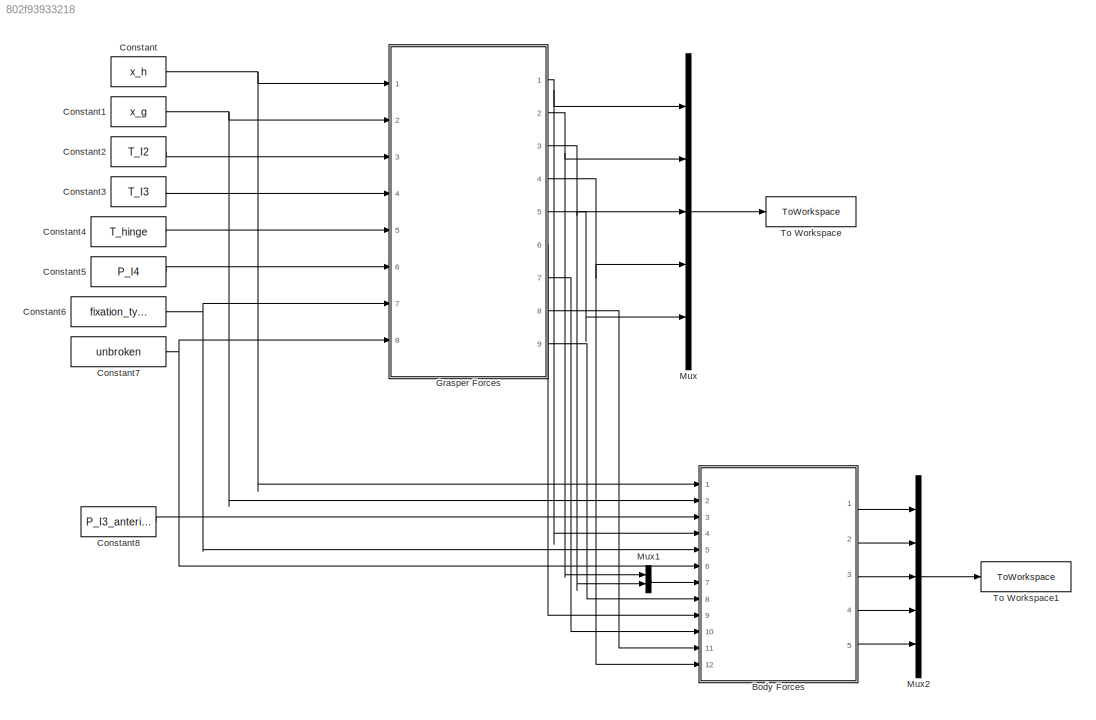
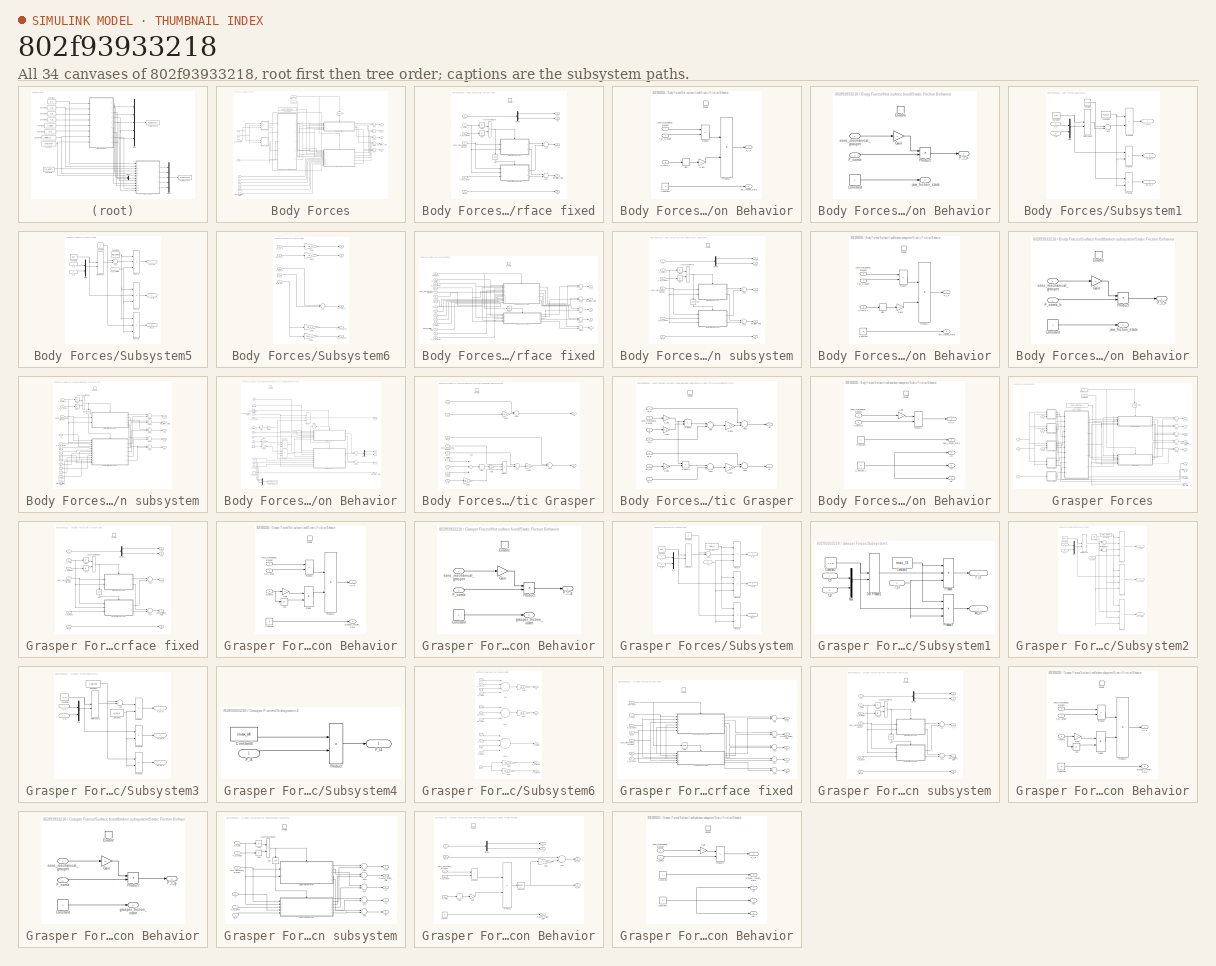
[diagram: thumbnail index - all 34 canvases of the model, root first then tree order]
MODEL slx_802f93933218
KIND model
CONFIG AbsTol = auto
CONFIG EnableMultiTasking = off
CONFIG FixedStep = 1.0
CONFIG MaxStep = auto
CONFIG MinStep = auto
CONFIG RelTol = 1e-3
CONFIG SampleTimeConstraint = Unconstrained
CONFIG Solver = FixedStepAuto
CONFIG SolverName = FixedStepAuto
CONFIG StartTime = 0.0
CONFIG StopTime = 1.0
BLOCK [SubSystem] Body Forces
  Ports = [12, 5]
  RequestExecContextInheritance = off
BLOCK [Outport] Body Forces/A11
  IconDisplay = Port number
  Port = 2
BLOCK [Outport] Body Forces/A12
  IconDisplay = Port number
  Port = 3
BLOCK [Inport] Body Forces/A2
  IconDisplay = Port number
  Port = 7
BLOCK [Sum] Body Forces/Add
  InputSameDT = off
  OutDataTypeStr = Inherit: Inherit via internal rule
  Ports = [2, 1]
  SaturateOnIntegerOverflow = off
BLOCK [Sum] Body Forces/Add1
  InputSameDT = off
  OutDataTypeStr = Inherit: Inherit via internal rule
  Ports = [2, 1]
  SaturateOnIntegerOverflow = off
BLOCK [Sum] Body Forces/Add2
  InputSameDT = off
  OutDataTypeStr = Inherit: Inherit via internal rule
  Ports = [2, 1]
  SaturateOnIntegerOverflow = off
BLOCK [Sum] Body Forces/Add3
  InputSameDT = off
  OutDataTypeStr = Inherit: Inherit via internal rule
  Ports = [2, 1]
  SaturateOnIntegerOverflow = off
BLOCK [Sum] Body Forces/Add4
  InputSameDT = off
  OutDataTypeStr = Inherit: Inherit via internal rule
  Ports = [2, 1]
  SaturateOnIntegerOverflow = off
BLOCK [Outport] Body Forces/B1
  IconDisplay = Port number
  Port = 5
BLOCK [Inport] Body Forces/B2
  IconDisplay = Port number
  Port = 8
BLOCK [Constant] Body Forces/Constant1
  Value = sens_mechanical_grasper
BLOCK [Inport] Body Forces/F_I3
  IconDisplay = Port number
  Port = 9
BLOCK [Inport] Body Forces/F_I4
  IconDisplay = Port number
  Port = 10
BLOCK [Inport] Body Forces/F_f_g
  IconDisplay = Port number
  Port = 4
BLOCK [Outport] Body Forces/F_f_h
  IconDisplay = Port number
BLOCK [Inport] Body Forces/F_hinge
  IconDisplay = Port number
  Port = 11
BLOCK [Logic] Body Forces/NOT
  AllPortsSameDT = off
  IconShape = distinctive
  Operator = NOT
  OutDataTypeStr = boolean
  Ports = [1, 1]
BLOCK [SubSystem] Body Forces/Not surface fixed
  Ports = [6, 5, 1]
  RequestExecContextInheritance = off
BLOCK [Inport] Body Forces/Not surface fixed/A1
  IconDisplay = Port number
  Port = 5
BLOCK [Outport] Body Forces/Not surface fixed/A11
  IconDisplay = Port number
  Port = 2
BLOCK [Outport] Body Forces/Not surface fixed/A12
  IconDisplay = Port number
  Port = 3
BLOCK [Abs] Body Forces/Not surface fixed/Abs
  SaturateOnIntegerOverflow = off
BLOCK [Abs] Body Forces/Not surface fixed/Abs1
  SaturateOnIntegerOverflow = off
BLOCK [Sum] Body Forces/Not surface fixed/Add
  InputSameDT = off
  OutDataTypeStr = Inherit: Inherit via internal rule
  Ports = [2, 1]
  SaturateOnIntegerOverflow = off
BLOCK [Sum] Body Forces/Not surface fixed/Add1
  InputSameDT = off
  OutDataTypeStr = Inherit: Inherit via internal rule
  Ports = [2, 1]
  SaturateOnIntegerOverflow = off
BLOCK [Outport] Body Forces/Not surface fixed/B1
  IconDisplay = Port number
  Port = 5
BLOCK [Inport] Body Forces/Not surface fixed/B1_in
  IconDisplay = Port number
  Port = 6
BLOCK [Demux] Body Forces/Not surface fixed/Demux
  DisplayOption = bar
  Outputs = 2
  Ports = [1, 2]
BLOCK [EnablePort] Body Forces/Not surface fixed/Enable
  Ports = []
BLOCK [Inport] Body Forces/Not surface fixed/F_comb_h
  IconDisplay = Port number
BLOCK [Outport] Body Forces/Not surface fixed/F_f_h
  IconDisplay = Port number
BLOCK [Inport] Body Forces/Not surface fixed/F_kf_h_range
  IconDisplay = Port number
  Port = 3
BLOCK [Inport] Body Forces/Not surface fixed/F_sf_h_range
  IconDisplay = Port number
  Port = 2
BLOCK [SubSystem] Body Forces/Not surface fixed/Kinetic Friction Behavior
  Ports = [3, 2, 1]
  RequestExecContextInheritance = off
BLOCK [Constant] Body Forces/Not surface fixed/Kinetic Friction Behavior/Constant
  Value = 0
BLOCK [EnablePort] Body Forces/Not surface fixed/Kinetic Friction Behavior/Enable
  Ports = []
BLOCK [Inport] Body Forces/Not surface fixed/Kinetic Friction Behavior/F_comb_h
  IconDisplay = Port number
  Port = 2
BLOCK [Outport] Body Forces/Not surface fixed/Kinetic Friction Behavior/F_f_h
  IconDisplay = Port number
BLOCK [Inport] Body Forces/Not surface fixed/Kinetic Friction Behavior/F_kf_h_range
  IconDisplay = Port number
  Port = 3
BLOCK [Gain] Body Forces/Not surface fixed/Kinetic Friction Behavior/Gain1
  Gain = -1
  OutDataTypeStr = Inherit: Inherit via internal rule
  ParamDataTypeStr = Inherit: Inherit via internal rule
  SaturateOnIntegerOverflow = off
BLOCK [Product] Body Forces/Not surface fixed/Kinetic Friction Behavior/Product
  InputSameDT = off
  OutDataTypeStr = Inherit: Inherit via internal rule
  Ports = [2, 1]
  RndMeth = Floor
  SaturateOnIntegerOverflow = off
BLOCK [Product] Body Forces/Not surface fixed/Kinetic Friction Behavior/Product1
  InputSameDT = off
  OutDataTypeStr = Inherit: Inherit via internal rule
  Ports = [2, 1]
  RndMeth = Floor
  SaturateOnIntegerOverflow = off
BLOCK [Signum] Body Forces/Not surface fixed/Kinetic Friction Behavior/Sign
BLOCK [Outport] Body Forces/Not surface fixed/Kinetic Friction Behavior/jaw_friction_state
  IconDisplay = Port number
  Port = 2
BLOCK [Inport] Body Forces/Not surface fixed/Kinetic Friction Behavior/sens_mechanical_grasper
  IconDisplay = Port number
BLOCK [RelationalOperator] Body Forces/Not surface fixed/LessThanOrEqual
  InputSameDT = off
  Operator = <=
  OutDataTypeStr = boolean
  Ports = [2, 1]
  RndMeth = Simplest
BLOCK [Logic] Body Forces/Not surface fixed/NOT
  AllPortsSameDT = off
  IconShape = distinctive
  Operator = NOT
  OutDataTypeStr = boolean
  Ports = [1, 1]
BLOCK [SubSystem] Body Forces/Not surface fixed/Static Friction Behavior
  Ports = [2, 2, 1]
  RequestExecContextInheritance = off
BLOCK [Constant] Body Forces/Not surface fixed/Static Friction Behavior/Constant
BLOCK [EnablePort] Body Forces/Not surface fixed/Static Friction Behavior/Enable
  Ports = []
BLOCK [Inport] Body Forces/Not surface fixed/Static Friction Behavior/F_comb
  IconDisplay = Port number
  Port = 2
BLOCK [Outport] Body Forces/Not surface fixed/Static Friction Behavior/F_f_h
  IconDisplay = Port number
BLOCK [Gain] Body Forces/Not surface fixed/Static Friction Behavior/Gain
  Gain = -1
  OutDataTypeStr = Inherit: Inherit via internal rule
  ParamDataTypeStr = Inherit: Inherit via internal rule
  SaturateOnIntegerOverflow = off
BLOCK [Product] Body Forces/Not surface fixed/Static Friction Behavior/Product
  InputSameDT = off
  OutDataTypeStr = Inherit: Inherit via internal rule
  Ports = [2, 1]
  RndMeth = Floor
  SaturateOnIntegerOverflow = off
BLOCK [Outport] Body Forces/Not surface fixed/Static Friction Behavior/jaw_friction_state
  IconDisplay = Port number
  Port = 2
BLOCK [Inport] Body Forces/Not surface fixed/Static Friction Behavior/sens_mechanical_grasper
  IconDisplay = Port number
BLOCK [Outport] Body Forces/Not surface fixed/jaw_friction_state
  IconDisplay = Port number
  Port = 4
BLOCK [Inport] Body Forces/Not surface fixed/sens_mechanical_grasper
  IconDisplay = Port number
  Port = 4
BLOCK [Inport] Body Forces/P_I3_anterior
  IconDisplay = Port number
  Port = 3
BLOCK [SubSystem] Body Forces/Subsystem1
  Ports = [2, 3]
  RequestExecContextInheritance = off
BLOCK [Outport] Body Forces/Subsystem1/A1_sp_h
  IconDisplay = Port number
  Port = 2
BLOCK [Sum] Body Forces/Subsystem1/Add2
  InputSameDT = off
  OutDataTypeStr = Inherit: Inherit via internal rule
  Ports = [2, 1]
  SaturateOnIntegerOverflow = off
BLOCK [Outport] Body Forces/Subsystem1/B1_sp_h
  IconDisplay = Port number
  Port = 3
BLOCK [Constant] Body Forces/Subsystem1/Constant1
  Value = x_h_ref
BLOCK [Constant] Body Forces/Subsystem1/Constant2
  Value = [-1 0]
BLOCK [Constant] Body Forces/Subsystem1/Constant3
  Value = K_sp_h
BLOCK [DotProduct] Body Forces/Subsystem1/Dot Product1
  OutDataTypeStr = Inherit: Inherit via internal rule
BLOCK [Outport] Body Forces/Subsystem1/F_sp_h
  IconDisplay = Port number
BLOCK [Mux] Body Forces/Subsystem1/Mux
  DisplayOption = bar
  Inputs = 2
  Ports = [2, 1]
BLOCK [Product] Body Forces/Subsystem1/Product1
  InputSameDT = off
  OutDataTypeStr = Inherit: Inherit via internal rule
  Ports = [2, 1]
  RndMeth = Floor
  SaturateOnIntegerOverflow = off
BLOCK [Product] Body Forces/Subsystem1/Product2
  InputSameDT = off
  OutDataTypeStr = Inherit: Inherit via internal rule
  Ports = [2, 1]
  RndMeth = Floor
  SaturateOnIntegerOverflow = off
BLOCK [Product] Body Forces/Subsystem1/Product3
  InputSameDT = off
  OutDataTypeStr = Inherit: Inherit via internal rule
  Ports = [2, 1]
  RndMeth = Floor
  SaturateOnIntegerOverflow = off
BLOCK [Inport] Body Forces/Subsystem1/x_g
  IconDisplay = Port number
  Port = 2
BLOCK [Inport] Body Forces/Subsystem1/x_h
  IconDisplay = Port number
BLOCK [SubSystem] Body Forces/Subsystem5
  Ports = [3, 3]
  RequestExecContextInheritance = off
BLOCK [Outport] Body Forces/Subsystem5/A1_I3
  IconDisplay = Port number
  Port = 2
BLOCK [Sum] Body Forces/Subsystem5/Add2
  InputSameDT = off
  OutDataTypeStr = Inherit: Inherit via internal rule
  Ports = [2, 1]
  SaturateOnIntegerOverflow = off
BLOCK [Outport] Body Forces/Subsystem5/B1_I3
  IconDisplay = Port number
  Port = 3
BLOCK [Constant] Body Forces/Subsystem5/Constant1
BLOCK [Constant] Body Forces/Subsystem5/Constant2
  Value = [1 -1]
BLOCK [Constant] Body Forces/Subsystem5/Constant3
  Value = max_I3ant
BLOCK [DotProduct] Body Forces/Subsystem5/Dot Product
  OutDataTypeStr = Inherit: Inherit via internal rule
BLOCK [Outport] Body Forces/Subsystem5/F_I3_ant
  IconDisplay = Port number
BLOCK [Mux] Body Forces/Subsystem5/Mux
  DisplayOption = bar
  Inputs = 2
  Ports = [2, 1]
BLOCK [Inport] Body Forces/Subsystem5/P_I3_anterior
  IconDisplay = Port number
  Port = 3
BLOCK [Product] Body Forces/Subsystem5/Product1
  InputSameDT = off
  Inputs = 3
  OutDataTypeStr = Inherit: Inherit via internal rule
  Ports = [3, 1]
  RndMeth = Floor
  SaturateOnIntegerOverflow = off
BLOCK [Product] Body Forces/Subsystem5/Product2
  InputSameDT = off
  Inputs = 3
  OutDataTypeStr = Inherit: Inherit via internal rule
  Ports = [3, 1]
  RndMeth = Floor
  SaturateOnIntegerOverflow = off
BLOCK [Product] Body Forces/Subsystem5/Product3
  InputSameDT = off
  Inputs = 3
  OutDataTypeStr = Inherit: Inherit via internal rule
  Ports = [3, 1]
  RndMeth = Floor
  SaturateOnIntegerOverflow = off
BLOCK [Inport] Body Forces/Subsystem5/x_g
  IconDisplay = Port number
  Port = 2
BLOCK [Inport] Body Forces/Subsystem5/x_h
  IconDisplay = Port number
BLOCK [SubSystem] Body Forces/Subsystem6
  Ports = [5, 5]
  RequestExecContextInheritance = off
BLOCK [Outport] Body Forces/Subsystem6/A1
  IconDisplay = Port number
BLOCK [Inport] Body Forces/Subsystem6/A1_sp_h
  IconDisplay = Port number
  Port = 4
BLOCK [Sum] Body Forces/Subsystem6/Add
  InputSameDT = off
  OutDataTypeStr = Inherit: Inherit via internal rule
  Ports = [2, 1]
  SaturateOnIntegerOverflow = off
BLOCK [Outport] Body Forces/Subsystem6/B1
  IconDisplay = Port number
  Port = 2
BLOCK [Inport] Body Forces/Subsystem6/B1_sp_h
  IconDisplay = Port number
  Port = 5
BLOCK [Inport] Body Forces/Subsystem6/F_I3_ant
  IconDisplay = Port number
BLOCK [Outport] Body Forces/Subsystem6/F_comb_h
  IconDisplay = Port number
  Port = 3
BLOCK [Inport] Body Forces/Subsystem6/F_f_g
  IconDisplay = Port number
  Port = 3
BLOCK [Outport] Body Forces/Subsystem6/F_kf_h_range
  IconDisplay = Port number
  Port = 5
BLOCK [Outport] Body Forces/Subsystem6/F_sf_h_range
  IconDisplay = Port number
  Port = 4
BLOCK [Inport] Body Forces/Subsystem6/F_sph_h
  IconDisplay = Port number
  Port = 2
BLOCK [Gain] Body Forces/Subsystem6/Gain1
  Gain = 1 / c_h
  OutDataTypeStr = Inherit: Inherit via internal rule
  ParamDataTypeStr = Inherit: Inherit via internal rule
  SaturateOnIntegerOverflow = off
BLOCK [Gain] Body Forces/Subsystem6/Gain2
  Gain = mu_s_h
  OutDataTypeStr = Inherit: Inherit via internal rule
  ParamDataTypeStr = Inherit: Inherit via internal rule
  SaturateOnIntegerOverflow = off
BLOCK [Gain] Body Forces/Subsystem6/Gain3
  Gain = mu_k_h
  OutDataTypeStr = Inherit: Inherit via internal rule
  ParamDataTypeStr = Inherit: Inherit via internal rule
  SaturateOnIntegerOverflow = off
BLOCK [Gain] Body Forces/Subsystem6/Gain4
  Gain = 1 / c_h
  OutDataTypeStr = Inherit: Inherit via internal rule
  ParamDataTypeStr = Inherit: Inherit via internal rule
  SaturateOnIntegerOverflow = off
BLOCK [SubSystem] Body Forces/Surface fixed
  Ports = [15, 5, 1]
  RequestExecContextInheritance = off
BLOCK [Inport] Body Forces/Surface fixed/A1
  IconDisplay = Port number
  Port = 5
BLOCK [Outport] Body Forces/Surface fixed/A11
  IconDisplay = Port number
  Port = 2
BLOCK [Outport] Body Forces/Surface fixed/A12
  IconDisplay = Port number
  Port = 3
BLOCK [Inport] Body Forces/Surface fixed/A1_I3
  IconDisplay = Port number
  Port = 8
BLOCK [Inport] Body Forces/Surface fixed/A2
  IconDisplay = Port number
  Port = 9
BLOCK [Sum] Body Forces/Surface fixed/Add
  InputSameDT = off
  OutDataTypeStr = Inherit: Inherit via internal rule
  Ports = [2, 1]
  SaturateOnIntegerOverflow = off
BLOCK [Sum] Body Forces/Surface fixed/Add1
  InputSameDT = off
  OutDataTypeStr = Inherit: Inherit via internal rule
  Ports = [2, 1]
  SaturateOnIntegerOverflow = off
BLOCK [Sum] Body Forces/Surface fixed/Add2
  InputSameDT = off
  OutDataTypeStr = Inherit: Inherit via internal rule
  Ports = [2, 1]
  SaturateOnIntegerOverflow = off
BLOCK [Sum] Body Forces/Surface fixed/Add3
  InputSameDT = off
  OutDataTypeStr = Inherit: Inherit via internal rule
  Ports = [2, 1]
  SaturateOnIntegerOverflow = off
BLOCK [Sum] Body Forces/Surface fixed/Add4
  InputSameDT = off
  OutDataTypeStr = Inherit: Inherit via internal rule
  Ports = [2, 1]
  SaturateOnIntegerOverflow = off
BLOCK [Outport] Body Forces/Surface fixed/B1
  IconDisplay = Port number
  Port = 5
BLOCK [Inport] Body Forces/Surface fixed/B1_I3
  IconDisplay = Port number
  Port = 15
BLOCK [Inport] Body Forces/Surface fixed/B1_in
  IconDisplay = Port number
  Port = 6
BLOCK [Inport] Body Forces/Surface fixed/B2
  IconDisplay = Port number
  Port = 10
BLOCK [EnablePort] Body Forces/Surface fixed/Enable
  Ports = []
BLOCK [Inport] Body Forces/Surface fixed/F_I3
  IconDisplay = Port number
  Port = 11
BLOCK [Inport] Body Forces/Surface fixed/F_I4
  IconDisplay = Port number
  Port = 12
BLOCK [Inport] Body Forces/Surface fixed/F_comb_h
  IconDisplay = Port number
BLOCK [Outport] Body Forces/Surface fixed/F_f_h
  IconDisplay = Port number
BLOCK [Inport] Body Forces/Surface fixed/F_hinge
  IconDisplay = Port number
  Port = 13
BLOCK [Inport] Body Forces/Surface fixed/F_kf_h_range
  IconDisplay = Port number
  Port = 3
BLOCK [Inport] Body Forces/Surface fixed/F_sf_h_range
  IconDisplay = Port number
  Port = 2
BLOCK [Logic] Body Forces/Surface fixed/NOT
  AllPortsSameDT = off
  IconShape = distinctive
  Operator = NOT
  OutDataTypeStr = boolean
  Ports = [1, 1]
BLOCK [SubSystem] Body Forces/Surface fixed/broken subsystem
  Ports = [6, 5, 1]
  RequestExecContextInheritance = off
BLOCK [Inport] Body Forces/Surface fixed/broken subsystem/A1
  IconDisplay = Port number
BLOCK [Outport] Body Forces/Surface fixed/broken subsystem/A11
  IconDisplay = Port number
  Port = 3
BLOCK [Outport] Body Forces/Surface fixed/broken subsystem/A12
  IconDisplay = Port number
  Port = 4
BLOCK [Abs] Body Forces/Surface fixed/broken subsystem/Abs
  SaturateOnIntegerOverflow = off
BLOCK [Abs] Body Forces/Surface fixed/broken subsystem/Abs1
  SaturateOnIntegerOverflow = off
BLOCK [Sum] Body Forces/Surface fixed/broken subsystem/Add
  InputSameDT = off
  OutDataTypeStr = Inherit: Inherit via internal rule
  Ports = [2, 1]
  SaturateOnIntegerOverflow = off
BLOCK [Sum] Body Forces/Surface fixed/broken subsystem/Add1
  InputSameDT = off
  OutDataTypeStr = Inherit: Inherit via internal rule
  Ports = [2, 1]
  SaturateOnIntegerOverflow = off
BLOCK [Outport] Body Forces/Surface fixed/broken subsystem/B1
  IconDisplay = Port number
  Port = 5
BLOCK [Inport] Body Forces/Surface fixed/broken subsystem/B1_in
  IconDisplay = Port number
  Port = 6
BLOCK [Demux] Body Forces/Surface fixed/broken subsystem/Demux
  DisplayOption = bar
  Outputs = 2
  Ports = [1, 2]
BLOCK [EnablePort] Body Forces/Surface fixed/broken subsystem/Enable
  Ports = []
BLOCK [Inport] Body Forces/Surface fixed/broken subsystem/F_comb_h
  IconDisplay = Port number
  Port = 2
BLOCK [Outport] Body Forces/Surface fixed/broken subsystem/F_f_h
  IconDisplay = Port number
BLOCK [Inport] Body Forces/Surface fixed/broken subsystem/F_kf_h_range
  IconDisplay = Port number
  Port = 4
BLOCK [Inport] Body Forces/Surface fixed/broken subsystem/F_sf_h_range
  IconDisplay = Port number
  Port = 3
BLOCK [SubSystem] Body Forces/Surface fixed/broken subsystem/Kinetic Friction Behavior
  Ports = [3, 2, 1]
  RequestExecContextInheritance = off
BLOCK [Constant] Body Forces/Surface fixed/broken subsystem/Kinetic Friction Behavior/Constant
  Value = 0
BLOCK [EnablePort] Body Forces/Surface fixed/broken subsystem/Kinetic Friction Behavior/Enable
  Ports = []
BLOCK [Inport] Body Forces/Surface fixed/broken subsystem/Kinetic Friction Behavior/F_comb_h
  IconDisplay = Port number
  Port = 3
BLOCK [Outport] Body Forces/Surface fixed/broken subsystem/Kinetic Friction Behavior/F_f_h
  IconDisplay = Port number
BLOCK [Inport] Body Forces/Surface fixed/broken subsystem/Kinetic Friction Behavior/F_kf_h_range
  IconDisplay = Port number
  Port = 2
BLOCK [Gain] Body Forces/Surface fixed/broken subsystem/Kinetic Friction Behavior/Gain1
  Gain = -1
  OutDataTypeStr = Inherit: Inherit via internal rule
  ParamDataTypeStr = Inherit: Inherit via internal rule
  SaturateOnIntegerOverflow = off
BLOCK [Product] Body Forces/Surface fixed/broken subsystem/Kinetic Friction Behavior/Product
  InputSameDT = off
  OutDataTypeStr = Inherit: Inherit via internal rule
  Ports = [2, 1]
  RndMeth = Floor
  SaturateOnIntegerOverflow = off
BLOCK [Product] Body Forces/Surface fixed/broken subsystem/Kinetic Friction Behavior/Product1
  InputSameDT = off
  OutDataTypeStr = Inherit: Inherit via internal rule
  Ports = [2, 1]
  RndMeth = Floor
  SaturateOnIntegerOverflow = off
BLOCK [Signum] Body Forces/Surface fixed/broken subsystem/Kinetic Friction Behavior/Sign
BLOCK [Outport] Body Forces/Surface fixed/broken subsystem/Kinetic Friction Behavior/jaw_friction_state
  IconDisplay = Port number
  Port = 2
BLOCK [Inport] Body Forces/Surface fixed/broken subsystem/Kinetic Friction Behavior/sens_mechanical_grasper
  IconDisplay = Port number
BLOCK [RelationalOperator] Body Forces/Surface fixed/broken subsystem/LessThanOrEqual
  InputSameDT = off
  Operator = <=
  OutDataTypeStr = boolean
  Ports = [2, 1]
  RndMeth = Simplest
BLOCK [Logic] Body Forces/Surface fixed/broken subsystem/NOT
  AllPortsSameDT = off
  IconShape = distinctive
  Operator = NOT
  OutDataTypeStr = boolean
  Ports = [1, 1]
BLOCK [SubSystem] Body Forces/Surface fixed/broken subsystem/Static Friction Behavior
  Ports = [2, 2, 1]
  RequestExecContextInheritance = off
BLOCK [Constant] Body Forces/Surface fixed/broken subsystem/Static Friction Behavior/Constant
BLOCK [EnablePort] Body Forces/Surface fixed/broken subsystem/Static Friction Behavior/Enable
  Ports = []
BLOCK [Inport] Body Forces/Surface fixed/broken subsystem/Static Friction Behavior/F_comb_h
  IconDisplay = Port number
  Port = 2
BLOCK [Outport] Body Forces/Surface fixed/broken subsystem/Static Friction Behavior/F_f_h
  IconDisplay = Port number
BLOCK [Gain] Body Forces/Surface fixed/broken subsystem/Static Friction Behavior/Gain
  Gain = -1
  OutDataTypeStr = Inherit: Inherit via internal rule
  ParamDataTypeStr = Inherit: Inherit via internal rule
  SaturateOnIntegerOverflow = off
BLOCK [Product] Body Forces/Surface fixed/broken subsystem/Static Friction Behavior/Product
  InputSameDT = off
  OutDataTypeStr = Inherit: Inherit via internal rule
  Ports = [2, 1]
  RndMeth = Floor
  SaturateOnIntegerOverflow = off
BLOCK [Outport] Body Forces/Surface fixed/broken subsystem/Static Friction Behavior/jaw_friction_state
  IconDisplay = Port number
  Port = 2
BLOCK [Inport] Body Forces/Surface fixed/broken subsystem/Static Friction Behavior/sens_mechanical_grasper
  IconDisplay = Port number
BLOCK [Outport] Body Forces/Surface fixed/broken subsystem/jaw_friction_state
  IconDisplay = Port number
  Port = 2
BLOCK [Inport] Body Forces/Surface fixed/broken subsystem/sens_mechanical_grasper
  IconDisplay = Port number
  Port = 5
BLOCK [Inport] Body Forces/Surface fixed/grasper_friction_state
  IconDisplay = Port number
  Port = 14
BLOCK [Outport] Body Forces/Surface fixed/jaw_friction_state
  IconDisplay = Port number
  Port = 4
BLOCK [Inport] Body Forces/Surface fixed/sens_mechanical_grasper
  IconDisplay = Port number
  Port = 4
BLOCK [Inport] Body Forces/Surface fixed/unbroken
  IconDisplay = Port number
  Port = 7
BLOCK [SubSystem] Body Forces/Surface fixed/unbroken subsystem
  Ports = [14, 5, 1]
  RequestExecContextInheritance = off
BLOCK [Inport] Body Forces/Surface fixed/unbroken subsystem/A1
  IconDisplay = Port number
  Port = 5
BLOCK [Outport] Body Forces/Surface fixed/unbroken subsystem/A11
  IconDisplay = Port number
  Port = 3
BLOCK [Outport] Body Forces/Surface fixed/unbroken subsystem/A12
  IconDisplay = Port number
  Port = 4
BLOCK [Inport] Body Forces/Surface fixed/unbroken subsystem/A1_I3
  IconDisplay = Port number
  Port = 7
BLOCK [Inport] Body Forces/Surface fixed/unbroken subsystem/A2
  IconDisplay = Port number
  Port = 8
BLOCK [Abs] Body Forces/Surface fixed/unbroken subsystem/Abs
  SaturateOnIntegerOverflow = off
BLOCK [Abs] Body Forces/Surface fixed/unbroken subsystem/Abs1
  SaturateOnIntegerOverflow = off
BLOCK [Sum] Body Forces/Surface fixed/unbroken subsystem/Add
  InputSameDT = off
  OutDataTypeStr = Inherit: Inherit via internal rule
  Ports = [2, 1]
  SaturateOnIntegerOverflow = off
BLOCK [Sum] Body Forces/Surface fixed/unbroken subsystem/Add1
  InputSameDT = off
  OutDataTypeStr = Inherit: Inherit via internal rule
  Ports = [2, 1]
  SaturateOnIntegerOverflow = off
BLOCK [Sum] Body Forces/Surface fixed/unbroken subsystem/Add2
  InputSameDT = off
  OutDataTypeStr = Inherit: Inherit via internal rule
  Ports = [2, 1]
  SaturateOnIntegerOverflow = off
BLOCK [Sum] Body Forces/Surface fixed/unbroken subsystem/Add3
  InputSameDT = off
  OutDataTypeStr = Inherit: Inherit via internal rule
  Ports = [2, 1]
  SaturateOnIntegerOverflow = off
BLOCK [Sum] Body Forces/Surface fixed/unbroken subsystem/Add4
  InputSameDT = off
  OutDataTypeStr = Inherit: Inherit via internal rule
  Ports = [2, 1]
  SaturateOnIntegerOverflow = off
BLOCK [Outport] Body Forces/Surface fixed/unbroken subsystem/B1
  IconDisplay = Port number
  Port = 5
BLOCK [Inport] Body Forces/Surface fixed/unbroken subsystem/B1_I3
  IconDisplay = Port number
  Port = 14
BLOCK [Inport] Body Forces/Surface fixed/unbroken subsystem/B1_in
  IconDisplay = Port number
  Port = 6
BLOCK [Inport] Body Forces/Surface fixed/unbroken subsystem/B2
  IconDisplay = Port number
  Port = 9
BLOCK [EnablePort] Body Forces/Surface fixed/unbroken subsystem/Enable
  Ports = []
BLOCK [Inport] Body Forces/Surface fixed/unbroken subsystem/F_I3
  IconDisplay = Port number
  Port = 10
BLOCK [Inport] Body Forces/Surface fixed/unbroken subsystem/F_I4
  IconDisplay = Port number
  Port = 11
BLOCK [Inport] Body Forces/Surface fixed/unbroken subsystem/F_comb_h
  IconDisplay = Port number
BLOCK [Outport] Body Forces/Surface fixed/unbroken subsystem/F_f_h
  IconDisplay = Port number
BLOCK [Inport] Body Forces/Surface fixed/unbroken subsystem/F_hinge
  IconDisplay = Port number
  Port = 12
BLOCK [Inport] Body Forces/Surface fixed/unbroken subsystem/F_kf_h_range
  IconDisplay = Port number
  Port = 4
BLOCK [Inport] Body Forces/Surface fixed/unbroken subsystem/F_sf_h_range
  IconDisplay = Port number
  Port = 2
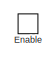
[diagram: Body Forces/Surface fixed/unbroken subsystem/Kinetic Friction Behavior - part 1/2, top left region]
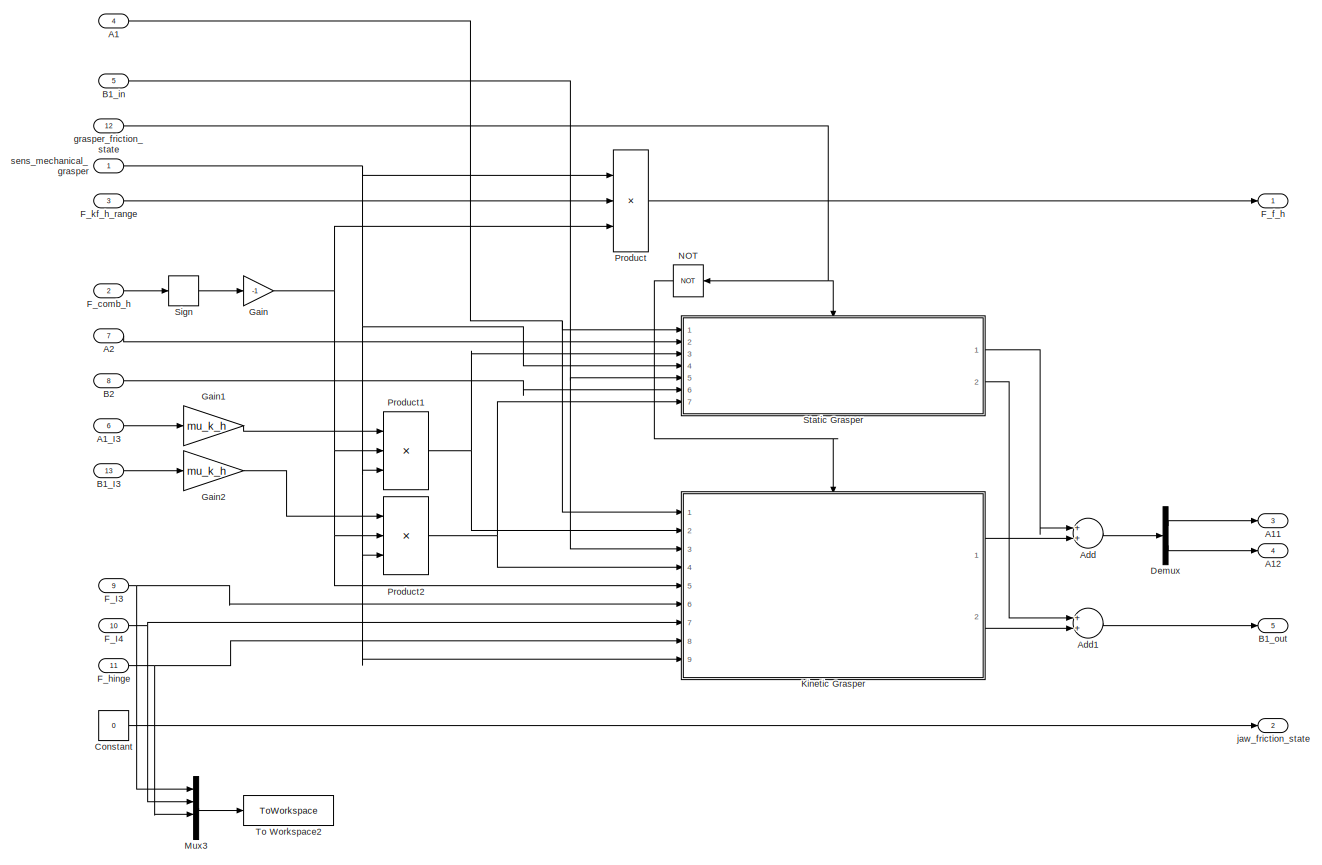
[diagram: Body Forces/Surface fixed/unbroken subsystem/Kinetic Friction Behavior - part 2/2, most of the canvas]
BLOCK [SubSystem] Body Forces/Surface fixed/unbroken subsystem/Kinetic Friction Behavior
  Ports = [13, 5, 1]
  RequestExecContextInheritance = off
BLOCK [Inport] Body Forces/Surface fixed/unbroken subsystem/Kinetic Friction Behavior/A1
  IconDisplay = Port number
  Port = 4
BLOCK [Outport] Body Forces/Surface fixed/unbroken subsystem/Kinetic Friction Behavior/A11
  IconDisplay = Port number
  Port = 3
BLOCK [Outport] Body Forces/Surface fixed/unbroken subsystem/Kinetic Friction Behavior/A12
  IconDisplay = Port number
  Port = 4
BLOCK [Inport] Body Forces/Surface fixed/unbroken subsystem/Kinetic Friction Behavior/A1_I3
  IconDisplay = Port number
  Port = 6
BLOCK [Inport] Body Forces/Surface fixed/unbroken subsystem/Kinetic Friction Behavior/A2
  IconDisplay = Port number
  Port = 7
BLOCK [Sum] Body Forces/Surface fixed/unbroken subsystem/Kinetic Friction Behavior/Add
  InputSameDT = off
  OutDataTypeStr = Inherit: Inherit via internal rule
  Ports = [2, 1]
  SaturateOnIntegerOverflow = off
BLOCK [Sum] Body Forces/Surface fixed/unbroken subsystem/Kinetic Friction Behavior/Add1
  InputSameDT = off
  OutDataTypeStr = Inherit: Inherit via internal rule
  Ports = [2, 1]
  SaturateOnIntegerOverflow = off
BLOCK [Inport] Body Forces/Surface fixed/unbroken subsystem/Kinetic Friction Behavior/B1_I3
  IconDisplay = Port number
  Port = 13
BLOCK [Inport] Body Forces/Surface fixed/unbroken subsystem/Kinetic Friction Behavior/B1_in
  IconDisplay = Port number
  Port = 5
BLOCK [Outport] Body Forces/Surface fixed/unbroken subsystem/Kinetic Friction Behavior/B1_out
  IconDisplay = Port number
  Port = 5
BLOCK [Inport] Body Forces/Surface fixed/unbroken subsystem/Kinetic Friction Behavior/B2
  IconDisplay = Port number
  Port = 8
BLOCK [Constant] Body Forces/Surface fixed/unbroken subsystem/Kinetic Friction Behavior/Constant
  Value = 0
BLOCK [Demux] Body Forces/Surface fixed/unbroken subsystem/Kinetic Friction Behavior/Demux
  DisplayOption = bar
  Outputs = 2
  Ports = [1, 2]
BLOCK [EnablePort] Body Forces/Surface fixed/unbroken subsystem/Kinetic Friction Behavior/Enable
  Ports = []
BLOCK [Inport] Body Forces/Surface fixed/unbroken subsystem/Kinetic Friction Behavior/F_I3
  IconDisplay = Port number
  Port = 9
BLOCK [Inport] Body Forces/Surface fixed/unbroken subsystem/Kinetic Friction Behavior/F_I4
  IconDisplay = Port number
  Port = 10
BLOCK [Inport] Body Forces/Surface fixed/unbroken subsystem/Kinetic Friction Behavior/F_comb_h
  IconDisplay = Port number
  Port = 2
BLOCK [Outport] Body Forces/Surface fixed/unbroken subsystem/Kinetic Friction Behavior/F_f_h
  IconDisplay = Port number
BLOCK [Inport] Body Forces/Surface fixed/unbroken subsystem/Kinetic Friction Behavior/F_hinge
  IconDisplay = Port number
  Port = 11
BLOCK [Inport] Body Forces/Surface fixed/unbroken subsystem/Kinetic Friction Behavior/F_kf_h_range
  IconDisplay = Port number
  Port = 3
BLOCK [Gain] Body Forces/Surface fixed/unbroken subsystem/Kinetic Friction Behavior/Gain
  Gain = -1
  OutDataTypeStr = Inherit: Inherit via internal rule
  ParamDataTypeStr = Inherit: Inherit via internal rule
  SaturateOnIntegerOverflow = off
BLOCK [Gain] Body Forces/Surface fixed/unbroken subsystem/Kinetic Friction Behavior/Gain1
  Gain = mu_k_h
  OutDataTypeStr = Inherit: Inherit via internal rule
  ParamDataTypeStr = Inherit: Inherit via internal rule
  SaturateOnIntegerOverflow = off
BLOCK [Gain] Body Forces/Surface fixed/unbroken subsystem/Kinetic Friction Behavior/Gain2
  Gain = mu_k_h
  OutDataTypeStr = Inherit: Inherit via internal rule
  ParamDataTypeStr = Inherit: Inherit via internal rule
  SaturateOnIntegerOverflow = off
BLOCK [SubSystem] Body Forces/Surface fixed/unbroken subsystem/Kinetic Friction Behavior/Kinetic Grasper
  Ports = [9, 2, 1]
  RequestExecContextInheritance = off
BLOCK [Outport] Body Forces/Surface fixed/unbroken subsystem/Kinetic Friction Behavior/Kinetic Grasper/A1
  IconDisplay = Port number
BLOCK [Inport] Body Forces/Surface fixed/unbroken subsystem/Kinetic Friction Behavior/Kinetic Grasper/A1_h
  IconDisplay = Port number
  Port = 2
BLOCK [Inport] Body Forces/Surface fixed/unbroken subsystem/Kinetic Friction Behavior/Kinetic Grasper/A1_in
  IconDisplay = Port number
BLOCK [Sum] Body Forces/Surface fixed/unbroken subsystem/Kinetic Friction Behavior/Kinetic Grasper/Add
  InputSameDT = off
  Inputs = +--
  OutDataTypeStr = Inherit: Inherit via internal rule
  Ports = [3, 1]
  SaturateOnIntegerOverflow = off
BLOCK [Sum] Body Forces/Surface fixed/unbroken subsystem/Kinetic Friction Behavior/Kinetic Grasper/Add1
  InputSameDT = off
  OutDataTypeStr = Inherit: Inherit via internal rule
  Ports = [2, 1]
  SaturateOnIntegerOverflow = off
BLOCK [Sum] Body Forces/Surface fixed/unbroken subsystem/Kinetic Friction Behavior/Kinetic Grasper/Add2
  InputSameDT = off
  OutDataTypeStr = Inherit: Inherit via internal rule
  Ports = [2, 1]
  SaturateOnIntegerOverflow = off
BLOCK [Sum] Body Forces/Surface fixed/unbroken subsystem/Kinetic Friction Behavior/Kinetic Grasper/Add3
  InputSameDT = off
  OutDataTypeStr = Inherit: Inherit via internal rule
  Ports = [2, 1]
  SaturateOnIntegerOverflow = off
BLOCK [Outport] Body Forces/Surface fixed/unbroken subsystem/Kinetic Friction Behavior/Kinetic Grasper/B1
  IconDisplay = Port number
  Port = 2
BLOCK [Inport] Body Forces/Surface fixed/unbroken subsystem/Kinetic Friction Behavior/Kinetic Grasper/B1_h
  IconDisplay = Port number
  Port = 4
BLOCK [Inport] Body Forces/Surface fixed/unbroken subsystem/Kinetic Friction Behavior/Kinetic Grasper/B1_in
  IconDisplay = Port number
  Port = 3
BLOCK [EnablePort] Body Forces/Surface fixed/unbroken subsystem/Kinetic Friction Behavior/Kinetic Grasper/Enable
  Ports = []
BLOCK [Inport] Body Forces/Surface fixed/unbroken subsystem/Kinetic Friction Behavior/Kinetic Grasper/F_I3
  IconDisplay = Port number
  Port = 6
BLOCK [Inport] Body Forces/Surface fixed/unbroken subsystem/Kinetic Friction Behavior/Kinetic Grasper/F_I4
  IconDisplay = Port number
  Port = 7
BLOCK [Inport] Body Forces/Surface fixed/unbroken subsystem/Kinetic Friction Behavior/Kinetic Grasper/F_comb_h
  IconDisplay = Port number
  Port = 5
BLOCK [Inport] Body Forces/Surface fixed/unbroken subsystem/Kinetic Friction Behavior/Kinetic Grasper/F_hinge
  IconDisplay = Port number
  Port = 8
BLOCK [Gain] Body Forces/Surface fixed/unbroken subsystem/Kinetic Friction Behavior/Kinetic Grasper/Gain
  Gain = -1
  OutDataTypeStr = Inherit: Inherit via internal rule
  ParamDataTypeStr = Inherit: Inherit via internal rule
  SaturateOnIntegerOverflow = off
BLOCK [Gain] Body Forces/Surface fixed/unbroken subsystem/Kinetic Friction Behavior/Kinetic Grasper/Gain1
  Gain = 1 / c_h
  OutDataTypeStr = Inherit: Inherit via internal rule
  ParamDataTypeStr = Inherit: Inherit via internal rule
  SaturateOnIntegerOverflow = off
BLOCK [Gain] Body Forces/Surface fixed/unbroken subsystem/Kinetic Friction Behavior/Kinetic Grasper/Gain2
  Gain = 1 / c_h
  OutDataTypeStr = Inherit: Inherit via internal rule
  ParamDataTypeStr = Inherit: Inherit via internal rule
  SaturateOnIntegerOverflow = off
BLOCK [Gain] Body Forces/Surface fixed/unbroken subsystem/Kinetic Friction Behavior/Kinetic Grasper/Gain3
  Gain = mu_k_g
  OutDataTypeStr = Inherit: Inherit via internal rule
  ParamDataTypeStr = Inherit: Inherit via internal rule
  SaturateOnIntegerOverflow = off
BLOCK [Product] Body Forces/Surface fixed/unbroken subsystem/Kinetic Friction Behavior/Kinetic Grasper/Product
  InputSameDT = off
  Inputs = 3
  OutDataTypeStr = Inherit: Inherit via internal rule
  Ports = [3, 1]
  RndMeth = Floor
  SaturateOnIntegerOverflow = off
BLOCK [Signum] Body Forces/Surface fixed/unbroken subsystem/Kinetic Friction Behavior/Kinetic Grasper/Sign
BLOCK [Inport] Body Forces/Surface fixed/unbroken subsystem/Kinetic Friction Behavior/Kinetic Grasper/sens_mechanical_grasper
  IconDisplay = Port number
  Port = 9
BLOCK [Mux] Body Forces/Surface fixed/unbroken subsystem/Kinetic Friction Behavior/Mux3
  DisplayOption = bar
  Ports = [4, 1]
BLOCK [Logic] Body Forces/Surface fixed/unbroken subsystem/Kinetic Friction Behavior/NOT
  AllPortsSameDT = off
  IconShape = distinctive
  Operator = NOT
  OutDataTypeStr = boolean
  Ports = [1, 1]
BLOCK [Product] Body Forces/Surface fixed/unbroken subsystem/Kinetic Friction Behavior/Product
  InputSameDT = off
  Inputs = 3
  OutDataTypeStr = Inherit: Inherit via internal rule
  Ports = [3, 1]
  RndMeth = Floor
  SaturateOnIntegerOverflow = off
BLOCK [Product] Body Forces/Surface fixed/unbroken subsystem/Kinetic Friction Behavior/Product1
  InputSameDT = off
  Inputs = 3
  OutDataTypeStr = Inherit: Inherit via internal rule
  Ports = [3, 1]
  RndMeth = Floor
  SaturateOnIntegerOverflow = off
BLOCK [Product] Body Forces/Surface fixed/unbroken subsystem/Kinetic Friction Behavior/Product2
  InputSameDT = off
  Inputs = 3
  OutDataTypeStr = Inherit: Inherit via internal rule
  Ports = [3, 1]
  RndMeth = Floor
  SaturateOnIntegerOverflow = off
BLOCK [Signum] Body Forces/Surface fixed/unbroken subsystem/Kinetic Friction Behavior/Sign
BLOCK [SubSystem] Body Forces/Surface fixed/unbroken subsystem/Kinetic Friction Behavior/Static Grasper
  Ports = [7, 2, 1]
  RequestExecContextInheritance = off
BLOCK [Outport] Body Forces/Surface fixed/unbroken subsystem/Kinetic Friction Behavior/Static Grasper/A1
  IconDisplay = Port number
BLOCK [Inport] Body Forces/Surface fixed/unbroken subsystem/Kinetic Friction Behavior/Static Grasper/A1_h
  IconDisplay = Port number
  Port = 3
BLOCK [Inport] Body Forces/Surface fixed/unbroken subsystem/Kinetic Friction Behavior/Static Grasper/A1_in
  IconDisplay = Port number
BLOCK [Inport] Body Forces/Surface fixed/unbroken subsystem/Kinetic Friction Behavior/Static Grasper/A2
  IconDisplay = Port number
  Port = 2
BLOCK [Sum] Body Forces/Surface fixed/unbroken subsystem/Kinetic Friction Behavior/Static Grasper/Add
  InputSameDT = off
  OutDataTypeStr = Inherit: Inherit via internal rule
  Ports = [2, 1]
  SaturateOnIntegerOverflow = off
BLOCK [Sum] Body Forces/Surface fixed/unbroken subsystem/Kinetic Friction Behavior/Static Grasper/Add1
  InputSameDT = off
  OutDataTypeStr = Inherit: Inherit via internal rule
  Ports = [2, 1]
  SaturateOnIntegerOverflow = off
BLOCK [Sum] Body Forces/Surface fixed/unbroken subsystem/Kinetic Friction Behavior/Static Grasper/Add2
  InputSameDT = off
  OutDataTypeStr = Inherit: Inherit via internal rule
  Ports = [2, 1]
  SaturateOnIntegerOverflow = off
BLOCK [Sum] Body Forces/Surface fixed/unbroken subsystem/Kinetic Friction Behavior/Static Grasper/Add3
  InputSameDT = off
  OutDataTypeStr = Inherit: Inherit via internal rule
  Ports = [2, 1]
  SaturateOnIntegerOverflow = off
BLOCK [Outport] Body Forces/Surface fixed/unbroken subsystem/Kinetic Friction Behavior/Static Grasper/B1
  IconDisplay = Port number
  Port = 2
BLOCK [Inport] Body Forces/Surface fixed/unbroken subsystem/Kinetic Friction Behavior/Static Grasper/B1_h
  IconDisplay = Port number
  Port = 7
BLOCK [Inport] Body Forces/Surface fixed/unbroken subsystem/Kinetic Friction Behavior/Static Grasper/B1_in
  IconDisplay = Port number
  Port = 5
BLOCK [Inport] Body Forces/Surface fixed/unbroken subsystem/Kinetic Friction Behavior/Static Grasper/B2_prior
  IconDisplay = Port number
  Port = 6
BLOCK [EnablePort] Body Forces/Surface fixed/unbroken subsystem/Kinetic Friction Behavior/Static Grasper/Enable
  Ports = []
BLOCK [Gain] Body Forces/Surface fixed/unbroken subsystem/Kinetic Friction Behavior/Static Grasper/Gain
  Gain = c_g
  OutDataTypeStr = Inherit: Inherit via internal rule
  ParamDataTypeStr = Inherit: Inherit via internal rule
  SaturateOnIntegerOverflow = off
BLOCK [Gain] Body Forces/Surface fixed/unbroken subsystem/Kinetic Friction Behavior/Static Grasper/Gain1
  Gain = -1
  OutDataTypeStr = Inherit: Inherit via internal rule
  ParamDataTypeStr = Inherit: Inherit via internal rule
  SaturateOnIntegerOverflow = off
BLOCK [Gain] Body Forces/Surface fixed/unbroken subsystem/Kinetic Friction Behavior/Static Grasper/Gain2
  Gain = 1 / c_h
  OutDataTypeStr = Inherit: Inherit via internal rule
  ParamDataTypeStr = Inherit: Inherit via internal rule
  SaturateOnIntegerOverflow = off
BLOCK [Gain] Body Forces/Surface fixed/unbroken subsystem/Kinetic Friction Behavior/Static Grasper/Gain3
  Gain = c_g
  OutDataTypeStr = Inherit: Inherit via internal rule
  ParamDataTypeStr = Inherit: Inherit via internal rule
  SaturateOnIntegerOverflow = off
BLOCK [Gain] Body Forces/Surface fixed/unbroken subsystem/Kinetic Friction Behavior/Static Grasper/Gain4
  Gain = 1 / c_h
  OutDataTypeStr = Inherit: Inherit via internal rule
  ParamDataTypeStr = Inherit: Inherit via internal rule
  SaturateOnIntegerOverflow = off
BLOCK [Product] Body Forces/Surface fixed/unbroken subsystem/Kinetic Friction Behavior/Static Grasper/Product
  InputSameDT = off
  OutDataTypeStr = Inherit: Inherit via internal rule
  Ports = [2, 1]
  RndMeth = Floor
  SaturateOnIntegerOverflow = off
BLOCK [Product] Body Forces/Surface fixed/unbroken subsystem/Kinetic Friction Behavior/Static Grasper/Product1
  InputSameDT = off
  OutDataTypeStr = Inherit: Inherit via internal rule
  Ports = [2, 1]
  RndMeth = Floor
  SaturateOnIntegerOverflow = off
BLOCK [Inport] Body Forces/Surface fixed/unbroken subsystem/Kinetic Friction Behavior/Static Grasper/sens_mechanical_grasper
  IconDisplay = Port number
  Port = 4
BLOCK [ToWorkspace] Body Forces/Surface fixed/unbroken subsystem/Kinetic Friction Behavior/To Workspace2
  FixptAsFi = on
  MaxDataPoints = inf
  Ports = [1]
  SampleTime = -1
  SaveFormat = Structure With Time
  VariableName = debug
BLOCK [Inport] Body Forces/Surface fixed/unbroken subsystem/Kinetic Friction Behavior/grasper_friction_state
  IconDisplay = Port number
  Port = 12
BLOCK [Outport] Body Forces/Surface fixed/unbroken subsystem/Kinetic Friction Behavior/jaw_friction_state
  IconDisplay = Port number
  Port = 2
BLOCK [Inport] Body Forces/Surface fixed/unbroken subsystem/Kinetic Friction Behavior/sens_mechanical_grasper
  IconDisplay = Port number
BLOCK [RelationalOperator] Body Forces/Surface fixed/unbroken subsystem/LessThanOrEqual
  InputSameDT = off
  Operator = <=
  OutDataTypeStr = boolean
  Ports = [2, 1]
  RndMeth = Simplest
BLOCK [Logic] Body Forces/Surface fixed/unbroken subsystem/NOT
  AllPortsSameDT = off
  IconShape = distinctive
  Operator = NOT
  OutDataTypeStr = boolean
  Ports = [1, 1]
BLOCK [SubSystem] Body Forces/Surface fixed/unbroken subsystem/Static Friction Behavior
  Ports = [2, 5, 1]
  RequestExecContextInheritance = off
BLOCK [Outport] Body Forces/Surface fixed/unbroken subsystem/Static Friction Behavior/A11
  IconDisplay = Port number
  Port = 3
BLOCK [Outport] Body Forces/Surface fixed/unbroken subsystem/Static Friction Behavior/A12
  IconDisplay = Port number
  Port = 4
BLOCK [Outport] Body Forces/Surface fixed/unbroken subsystem/Static Friction Behavior/B1
  IconDisplay = Port number
  Port = 5
BLOCK [Constant] Body Forces/Surface fixed/unbroken subsystem/Static Friction Behavior/Constant
BLOCK [Constant] Body Forces/Surface fixed/unbroken subsystem/Static Friction Behavior/Constant1
  Value = 0
BLOCK [EnablePort] Body Forces/Surface fixed/unbroken subsystem/Static Friction Behavior/Enable
  Ports = []
BLOCK [Inport] Body Forces/Surface fixed/unbroken subsystem/Static Friction Behavior/F_comb_h
  IconDisplay = Port number
  Port = 2
BLOCK [Outport] Body Forces/Surface fixed/unbroken subsystem/Static Friction Behavior/F_f_h
  IconDisplay = Port number
BLOCK [Gain] Body Forces/Surface fixed/unbroken subsystem/Static Friction Behavior/Gain
  Gain = -1
  OutDataTypeStr = Inherit: Inherit via internal rule
  ParamDataTypeStr = Inherit: Inherit via internal rule
  SaturateOnIntegerOverflow = off
BLOCK [Product] Body Forces/Surface fixed/unbroken subsystem/Static Friction Behavior/Product1
  InputSameDT = off
  OutDataTypeStr = Inherit: Inherit via internal rule
  Ports = [2, 1]
  RndMeth = Floor
  SaturateOnIntegerOverflow = off
BLOCK [Outport] Body Forces/Surface fixed/unbroken subsystem/Static Friction Behavior/jaw_friction_state
  IconDisplay = Port number
  Port = 2
BLOCK [Inport] Body Forces/Surface fixed/unbroken subsystem/Static Friction Behavior/sens_mechanical_grasper
  IconDisplay = Port number
BLOCK [Inport] Body Forces/Surface fixed/unbroken subsystem/grasper_friction_state
  IconDisplay = Port number
  Port = 13
BLOCK [Outport] Body Forces/Surface fixed/unbroken subsystem/jaw_friction_state
  IconDisplay = Port number
  Port = 2
BLOCK [Inport] Body Forces/Surface fixed/unbroken subsystem/sens_mechanical_grasper
  IconDisplay = Port number
  Port = 3
BLOCK [Inport] Body Forces/fixation_type
  IconDisplay = Port number
  Port = 5
BLOCK [Inport] Body Forces/grasper_friction_state
  IconDisplay = Port number
  Port = 12
BLOCK [Outport] Body Forces/jaw_friction_state
  IconDisplay = Port number
  Port = 4
BLOCK [Inport] Body Forces/unbroken
  IconDisplay = Port number
  Port = 6
BLOCK [Inport] Body Forces/x_g
  IconDisplay = Port number
  Port = 2
BLOCK [Inport] Body Forces/x_h
  IconDisplay = Port number
BLOCK [Constant] Constant
  Value = x_h
BLOCK [Constant] Constant1
  Value = x_g
BLOCK [Constant] Constant2
  Value = T_I2
BLOCK [Constant] Constant3
  Value = T_I3
BLOCK [Constant] Constant4
  Value = T_hinge
BLOCK [Constant] Constant5
  Value = P_I4
BLOCK [Constant] Constant6
  Value = fixation_type
BLOCK [Constant] Constant7
  Value = unbroken
BLOCK [Constant] Constant8
  Value = P_I3_anterior
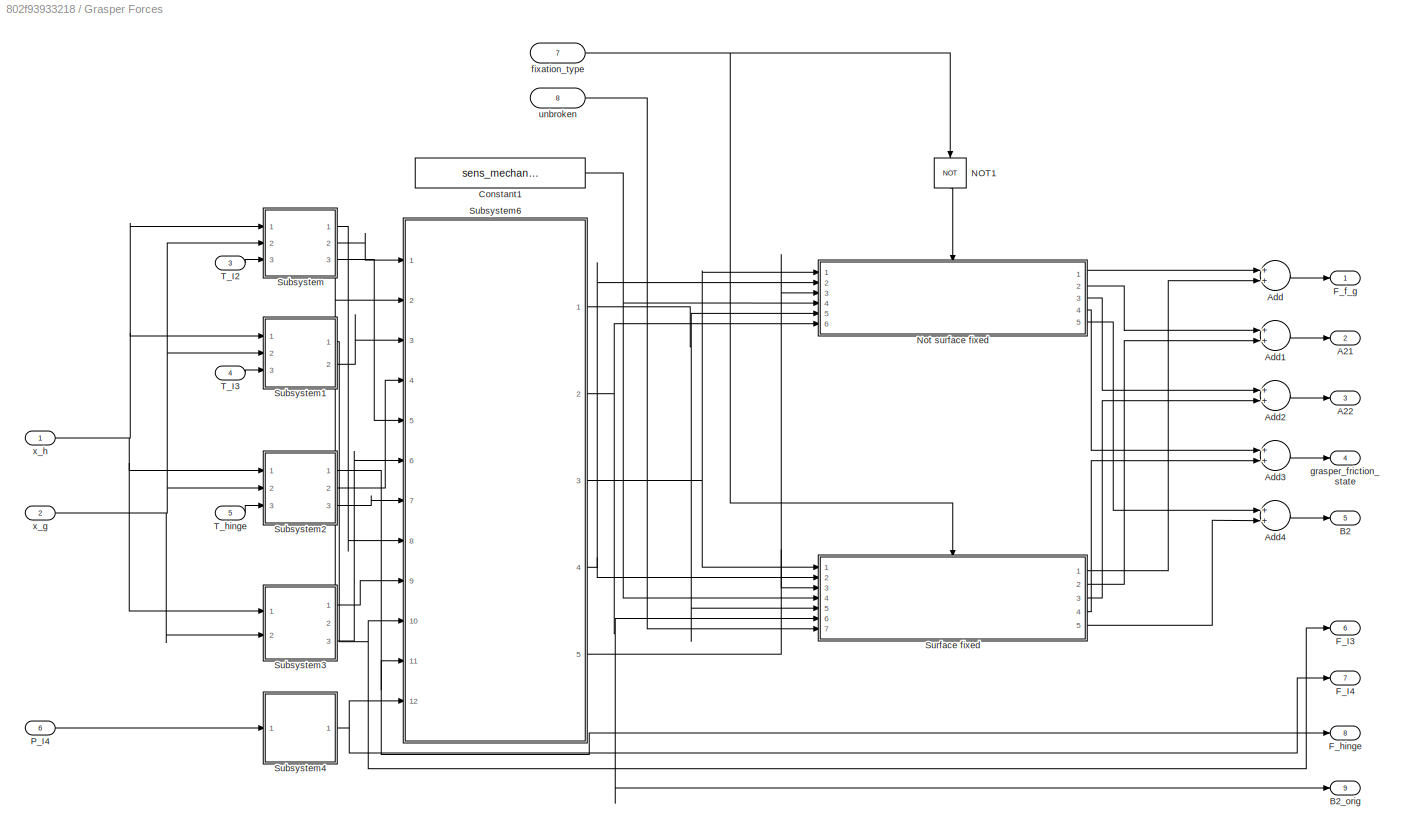
BLOCK [SubSystem] Grasper Forces
  Ports = [8, 9]
  RequestExecContextInheritance = off
BLOCK [Outport] Grasper Forces/A21
  IconDisplay = Port number
  Port = 2
BLOCK [Outport] Grasper Forces/A22
  IconDisplay = Port number
  Port = 3
BLOCK [Sum] Grasper Forces/Add
  InputSameDT = off
  OutDataTypeStr = Inherit: Inherit via internal rule
  Ports = [2, 1]
  SaturateOnIntegerOverflow = off
BLOCK [Sum] Grasper Forces/Add1
  InputSameDT = off
  OutDataTypeStr = Inherit: Inherit via internal rule
  Ports = [2, 1]
  SaturateOnIntegerOverflow = off
BLOCK [Sum] Grasper Forces/Add2
  InputSameDT = off
  OutDataTypeStr = Inherit: Inherit via internal rule
  Ports = [2, 1]
  SaturateOnIntegerOverflow = off
BLOCK [Sum] Grasper Forces/Add3
  InputSameDT = off
  OutDataTypeStr = Inherit: Inherit via internal rule
  Ports = [2, 1]
  SaturateOnIntegerOverflow = off
BLOCK [Sum] Grasper Forces/Add4
  InputSameDT = off
  OutDataTypeStr = Inherit: Inherit via internal rule
  Ports = [2, 1]
  SaturateOnIntegerOverflow = off
BLOCK [Outport] Grasper Forces/B2
  IconDisplay = Port number
  Port = 5
BLOCK [Outport] Grasper Forces/B2_orig
  IconDisplay = Port number
  Port = 9
BLOCK [Constant] Grasper Forces/Constant1
  Value = sens_mechanical_grasper
BLOCK [Outport] Grasper Forces/F_I3
  IconDisplay = Port number
  Port = 6
BLOCK [Outport] Grasper Forces/F_I4
  IconDisplay = Port number
  Port = 7
BLOCK [Outport] Grasper Forces/F_f_g
  IconDisplay = Port number
BLOCK [Outport] Grasper Forces/F_hinge
  IconDisplay = Port number
  Port = 8
BLOCK [Logic] Grasper Forces/NOT1
  AllPortsSameDT = off
  IconShape = distinctive
  Operator = NOT
  OutDataTypeStr = boolean
  Ports = [1, 1]
BLOCK [SubSystem] Grasper Forces/Not surface fixed
  Ports = [6, 5, 1]
  RequestExecContextInheritance = off
BLOCK [Inport] Grasper Forces/Not surface fixed/A2
  IconDisplay = Port number
  Port = 5
BLOCK [Outport] Grasper Forces/Not surface fixed/A21
  IconDisplay = Port number
  Port = 2
BLOCK [Outport] Grasper Forces/Not surface fixed/A22
  IconDisplay = Port number
  Port = 3
BLOCK [Abs] Grasper Forces/Not surface fixed/Abs
  SaturateOnIntegerOverflow = off
BLOCK [Abs] Grasper Forces/Not surface fixed/Abs1
  SaturateOnIntegerOverflow = off
BLOCK [Sum] Grasper Forces/Not surface fixed/Add
  InputSameDT = off
  OutDataTypeStr = Inherit: Inherit via internal rule
  Ports = [2, 1]
  SaturateOnIntegerOverflow = off
BLOCK [Sum] Grasper Forces/Not surface fixed/Add1
  InputSameDT = off
  OutDataTypeStr = Inherit: Inherit via internal rule
  Ports = [2, 1]
  SaturateOnIntegerOverflow = off
BLOCK [Outport] Grasper Forces/Not surface fixed/B2
  IconDisplay = Port number
  Port = 5
BLOCK [Inport] Grasper Forces/Not surface fixed/B2_in
  IconDisplay = Port number
  Port = 6
BLOCK [Demux] Grasper Forces/Not surface fixed/Demux
  DisplayOption = bar
  Outputs = 2
  Ports = [1, 2]
BLOCK [EnablePort] Grasper Forces/Not surface fixed/Enable
  Ports = []
BLOCK [Inport] Grasper Forces/Not surface fixed/F_comb
  IconDisplay = Port number
BLOCK [Outport] Grasper Forces/Not surface fixed/F_f_g
  IconDisplay = Port number
BLOCK [Inport] Grasper Forces/Not surface fixed/F_kf_range
  IconDisplay = Port number
  Port = 3
BLOCK [Inport] Grasper Forces/Not surface fixed/F_sf_range
  IconDisplay = Port number
  Port = 2
BLOCK [SubSystem] Grasper Forces/Not surface fixed/Kinetic Friction Behavior
  Ports = [3, 2, 1]
  RequestExecContextInheritance = off
BLOCK [Abs] Grasper Forces/Not surface fixed/Kinetic Friction Behavior/Abs
  SaturateOnIntegerOverflow = off
BLOCK [Constant] Grasper Forces/Not surface fixed/Kinetic Friction Behavior/Constant
  Value = 0
BLOCK [Product] Grasper Forces/Not surface fixed/Kinetic Friction Behavior/Divide
  InputSameDT = off
  Inputs = */
  OutDataTypeStr = Inherit: Inherit via internal rule
  Ports = [2, 1]
  RndMeth = Floor
  SaturateOnIntegerOverflow = off
BLOCK [EnablePort] Grasper Forces/Not surface fixed/Kinetic Friction Behavior/Enable
  Ports = []
BLOCK [Inport] Grasper Forces/Not surface fixed/Kinetic Friction Behavior/F_comb
  IconDisplay = Port number
  Port = 2
BLOCK [Outport] Grasper Forces/Not surface fixed/Kinetic Friction Behavior/F_f_g
  IconDisplay = Port number
BLOCK [Inport] Grasper Forces/Not surface fixed/Kinetic Friction Behavior/F_kf_range
  IconDisplay = Port number
  Port = 3
BLOCK [Gain] Grasper Forces/Not surface fixed/Kinetic Friction Behavior/Gain
  Gain = -1
  OutDataTypeStr = Inherit: Inherit via internal rule
  ParamDataTypeStr = Inherit: Inherit via internal rule
  SaturateOnIntegerOverflow = off
BLOCK [Product] Grasper Forces/Not surface fixed/Kinetic Friction Behavior/Product
  InputSameDT = off
  OutDataTypeStr = Inherit: Inherit via internal rule
  Ports = [2, 1]
  RndMeth = Floor
  SaturateOnIntegerOverflow = off
BLOCK [Product] Grasper Forces/Not surface fixed/Kinetic Friction Behavior/Product1
  InputSameDT = off
  OutDataTypeStr = Inherit: Inherit via internal rule
  Ports = [2, 1]
  RndMeth = Floor
  SaturateOnIntegerOverflow = off
BLOCK [Outport] Grasper Forces/Not surface fixed/Kinetic Friction Behavior/grasper_friction_state
  IconDisplay = Port number
  Port = 2
BLOCK [Inport] Grasper Forces/Not surface fixed/Kinetic Friction Behavior/sens_mechanical_grasper
  IconDisplay = Port number
BLOCK [RelationalOperator] Grasper Forces/Not surface fixed/LessThanOrEqual
  InputSameDT = off
  Operator = <=
  OutDataTypeStr = boolean
  Ports = [2, 1]
  RndMeth = Simplest
BLOCK [Logic] Grasper Forces/Not surface fixed/NOT
  AllPortsSameDT = off
  IconShape = distinctive
  Operator = NOT
  OutDataTypeStr = boolean
  Ports = [1, 1]
BLOCK [SubSystem] Grasper Forces/Not surface fixed/Static Friction Behavior
  Ports = [2, 2, 1]
  RequestExecContextInheritance = off
BLOCK [Constant] Grasper Forces/Not surface fixed/Static Friction Behavior/Constant
BLOCK [EnablePort] Grasper Forces/Not surface fixed/Static Friction Behavior/Enable
  Ports = []
BLOCK [Inport] Grasper Forces/Not surface fixed/Static Friction Behavior/F_comb
  IconDisplay = Port number
  Port = 2
BLOCK [Outport] Grasper Forces/Not surface fixed/Static Friction Behavior/F_f_g
  IconDisplay = Port number
BLOCK [Gain] Grasper Forces/Not surface fixed/Static Friction Behavior/Gain
  Gain = -1
  OutDataTypeStr = Inherit: Inherit via internal rule
  ParamDataTypeStr = Inherit: Inherit via internal rule
  SaturateOnIntegerOverflow = off
BLOCK [Product] Grasper Forces/Not surface fixed/Static Friction Behavior/Product
  InputSameDT = off
  OutDataTypeStr = Inherit: Inherit via internal rule
  Ports = [2, 1]
  RndMeth = Floor
  SaturateOnIntegerOverflow = off
BLOCK [Outport] Grasper Forces/Not surface fixed/Static Friction Behavior/grasper_friction_state
  IconDisplay = Port number
  Port = 2
BLOCK [Inport] Grasper Forces/Not surface fixed/Static Friction Behavior/sens_mechanical_grasper
  IconDisplay = Port number
BLOCK [Outport] Grasper Forces/Not surface fixed/grasper_friction_state
  IconDisplay = Port number
  Port = 4
BLOCK [Inport] Grasper Forces/Not surface fixed/sens_mechanical_grasper
  IconDisplay = Port number
  Port = 4
BLOCK [Inport] Grasper Forces/P_I4
  IconDisplay = Port number
  Port = 6
BLOCK [SubSystem] Grasper Forces/Subsystem
  Ports = [3, 3]
  RequestExecContextInheritance = off
BLOCK [Outport] Grasper Forces/Subsystem/A2_I2
  IconDisplay = Port number
  Port = 2
BLOCK [Sum] Grasper Forces/Subsystem/Add
  InputSameDT = off
  OutDataTypeStr = Inherit: Inherit via internal rule
  Ports = [2, 1]
  SaturateOnIntegerOverflow = off
BLOCK [Outport] Grasper Forces/Subsystem/B2_I2
  IconDisplay = Port number
  Port = 3
BLOCK [Constant] Grasper Forces/Subsystem/Constant
  Value = max_I2
BLOCK [Constant] Grasper Forces/Subsystem/Constant1
  Value = [1 -1]
BLOCK [Constant] Grasper Forces/Subsystem/Constant4
BLOCK [DotProduct] Grasper Forces/Subsystem/Dot Product
  OutDataTypeStr = Inherit: Inherit via internal rule
BLOCK [Outport] Grasper Forces/Subsystem/F_I2
  IconDisplay = Port number
BLOCK [Mux] Grasper Forces/Subsystem/Mux
  DisplayOption = bar
  Inputs = 2
  Ports = [2, 1]
BLOCK [Product] Grasper Forces/Subsystem/Product
  InputSameDT = off
  Inputs = 3
  OutDataTypeStr = Inherit: Inherit via internal rule
  Ports = [3, 1]
  RndMeth = Floor
  SaturateOnIntegerOverflow = off
BLOCK [Product] Grasper Forces/Subsystem/Product2
  InputSameDT = off
  Inputs = 3
  OutDataTypeStr = Inherit: Inherit via internal rule
  Ports = [3, 1]
  RndMeth = Floor
  SaturateOnIntegerOverflow = off
BLOCK [Product] Grasper Forces/Subsystem/Product3
  InputSameDT = off
  Inputs = 3
  OutDataTypeStr = Inherit: Inherit via internal rule
  Ports = [3, 1]
  RndMeth = Floor
  SaturateOnIntegerOverflow = off
BLOCK [Inport] Grasper Forces/Subsystem/T_I2
  IconDisplay = Port number
  Port = 3
BLOCK [Inport] Grasper Forces/Subsystem/x_g
  IconDisplay = Port number
  Port = 2
BLOCK [Inport] Grasper Forces/Subsystem/x_h
  IconDisplay = Port number
BLOCK [SubSystem] Grasper Forces/Subsystem1
  Ports = [3, 2]
  RequestExecContextInheritance = off
BLOCK [Outport] Grasper Forces/Subsystem1/A2_I3
  IconDisplay = Port number
  Port = 2
BLOCK [Constant] Grasper Forces/Subsystem1/Constant1
  Value = max_I3
BLOCK [Constant] Grasper Forces/Subsystem1/Constant2
  Value = [-1 1]
BLOCK [DotProduct] Grasper Forces/Subsystem1/Dot Product1
  OutDataTypeStr = Inherit: Inherit via internal rule
BLOCK [Outport] Grasper Forces/Subsystem1/F_I3
  IconDisplay = Port number
BLOCK [Mux] Grasper Forces/Subsystem1/Mux
  DisplayOption = bar
  Inputs = 2
  Ports = [2, 1]
BLOCK [Product] Grasper Forces/Subsystem1/Product
  InputSameDT = off
  Inputs = 3
  OutDataTypeStr = Inherit: Inherit via internal rule
  Ports = [3, 1]
  RndMeth = Floor
  SaturateOnIntegerOverflow = off
BLOCK [Product] Grasper Forces/Subsystem1/Product2
  InputSameDT = off
  Inputs = 3
  OutDataTypeStr = Inherit: Inherit via internal rule
  Ports = [3, 1]
  RndMeth = Floor
  SaturateOnIntegerOverflow = off
BLOCK [Inport] Grasper Forces/Subsystem1/T_I3
  IconDisplay = Port number
  Port = 3
BLOCK [Inport] Grasper Forces/Subsystem1/x_g
  IconDisplay = Port number
  Port = 2
BLOCK [Inport] Grasper Forces/Subsystem1/x_h
  IconDisplay = Port number
BLOCK [SubSystem] Grasper Forces/Subsystem2
  Ports = [3, 3]
  RequestExecContextInheritance = off
BLOCK [Outport] Grasper Forces/Subsystem2/A2_hinge
  IconDisplay = Port number
  Port = 2
BLOCK [Sum] Grasper Forces/Subsystem2/Add2
  InputSameDT = off
  Inputs = -+
  OutDataTypeStr = Inherit: Inherit via internal rule
  Ports = [2, 1]
  SaturateOnIntegerOverflow = off
BLOCK [Outport] Grasper Forces/Subsystem2/B2_hinge
  IconDisplay = Port number
  Port = 3
BLOCK [Constant] Grasper Forces/Subsystem2/Constant1
  Value = [-1 1]
BLOCK [Constant] Grasper Forces/Subsystem2/Constant2
  Value = max_hinge
BLOCK [Constant] Grasper Forces/Subsystem2/Constant3
  Value = 0.5
BLOCK [DotProduct] Grasper Forces/Subsystem2/Dot Product1
  OutDataTypeStr = Inherit: Inherit via internal rule
BLOCK [Outport] Grasper Forces/Subsystem2/F_hinge
  IconDisplay = Port number
BLOCK [RelationalOperator] Grasper Forces/Subsystem2/GreaterThan1
  InputSameDT = off
  Operator = >
  OutDataTypeStr = boolean
  Ports = [2, 1]
  RndMeth = Simplest
BLOCK [Mux] Grasper Forces/Subsystem2/Mux
  DisplayOption = bar
  Inputs = 2
  Ports = [2, 1]
BLOCK [Product] Grasper Forces/Subsystem2/Product
  InputSameDT = off
  Inputs = 4
  OutDataTypeStr = Inherit: Inherit via internal rule
  Ports = [4, 1]
  RndMeth = Floor
  SaturateOnIntegerOverflow = off
BLOCK [Product] Grasper Forces/Subsystem2/Product2
  InputSameDT = off
  Inputs = 4
  OutDataTypeStr = Inherit: Inherit via internal rule
  Ports = [4, 1]
  RndMeth = Floor
  SaturateOnIntegerOverflow = off
BLOCK [Product] Grasper Forces/Subsystem2/Product3
  InputSameDT = off
  Inputs = 4
  OutDataTypeStr = Inherit: Inherit via internal rule
  Ports = [4, 1]
  RndMeth = Floor
  SaturateOnIntegerOverflow = off
BLOCK [Inport] Grasper Forces/Subsystem2/T_hinge
  IconDisplay = Port number
  Port = 3
BLOCK [Inport] Grasper Forces/Subsystem2/x_g
  IconDisplay = Port number
  Port = 2
BLOCK [Inport] Grasper Forces/Subsystem2/x_h
  IconDisplay = Port number
BLOCK [SubSystem] Grasper Forces/Subsystem3
  Ports = [2, 3]
  RequestExecContextInheritance = off
BLOCK [Outport] Grasper Forces/Subsystem3/A2_sp_g
  IconDisplay = Port number
  Port = 2
BLOCK [Sum] Grasper Forces/Subsystem3/Add
  InputSameDT = off
  OutDataTypeStr = Inherit: Inherit via internal rule
  Ports = [2, 1]
  SaturateOnIntegerOverflow = off
BLOCK [Outport] Grasper Forces/Subsystem3/B2_sp_g
  IconDisplay = Port number
  Port = 3
BLOCK [Constant] Grasper Forces/Subsystem3/Constant1
  Value = K_sp_g
BLOCK [Constant] Grasper Forces/Subsystem3/Constant2
  Value = [1 -1]
BLOCK [Constant] Grasper Forces/Subsystem3/Constant4
  Value = x_gh_ref
BLOCK [DotProduct] Grasper Forces/Subsystem3/Dot Product1
  OutDataTypeStr = Inherit: Inherit via internal rule
BLOCK [Outport] Grasper Forces/Subsystem3/F_sp_g
  IconDisplay = Port number
BLOCK [Mux] Grasper Forces/Subsystem3/Mux
  DisplayOption = bar
  Inputs = 2
  Ports = [2, 1]
BLOCK [Product] Grasper Forces/Subsystem3/Product
  InputSameDT = off
  OutDataTypeStr = Inherit: Inherit via internal rule
  Ports = [2, 1]
  RndMeth = Floor
  SaturateOnIntegerOverflow = off
BLOCK [Product] Grasper Forces/Subsystem3/Product2
  InputSameDT = off
  OutDataTypeStr = Inherit: Inherit via internal rule
  Ports = [2, 1]
  RndMeth = Floor
  SaturateOnIntegerOverflow = off
BLOCK [Product] Grasper Forces/Subsystem3/Product3
  InputSameDT = off
  OutDataTypeStr = Inherit: Inherit via internal rule
  Ports = [2, 1]
  RndMeth = Floor
  SaturateOnIntegerOverflow = off
BLOCK [Inport] Grasper Forces/Subsystem3/x_g
  IconDisplay = Port number
  Port = 2
BLOCK [Inport] Grasper Forces/Subsystem3/x_h
  IconDisplay = Port number
BLOCK [SubSystem] Grasper Forces/Subsystem4
  Ports = [1, 1]
  RequestExecContextInheritance = off
BLOCK [Constant] Grasper Forces/Subsystem4/Constant4
  Value = max_I4
BLOCK [Outport] Grasper Forces/Subsystem4/F_I4
  IconDisplay = Port number
BLOCK [Inport] Grasper Forces/Subsystem4/P_I4
  IconDisplay = Port number
BLOCK [Product] Grasper Forces/Subsystem4/Product
  InputSameDT = off
  OutDataTypeStr = Inherit: Inherit via internal rule
  Ports = [2, 1]
  RndMeth = Floor
  SaturateOnIntegerOverflow = off
BLOCK [SubSystem] Grasper Forces/Subsystem6
  Ports = [12, 5]
  RequestExecContextInheritance = off
BLOCK [Outport] Grasper Forces/Subsystem6/A2
  IconDisplay = Port number
BLOCK [Inport] Grasper Forces/Subsystem6/A2_I2
  IconDisplay = Port number
BLOCK [Inport] Grasper Forces/Subsystem6/A2_I3
  IconDisplay = Port number
  Port = 3
BLOCK [Inport] Grasper Forces/Subsystem6/A2_hinge
  IconDisplay = Port number
  Port = 4
BLOCK [Inport] Grasper Forces/Subsystem6/A2_sp_g
  IconDisplay = Port number
  Port = 2
BLOCK [Sum] Grasper Forces/Subsystem6/Add
  InputSameDT = off
  Inputs = ++--
  OutDataTypeStr = Inherit: Inherit via internal rule
  Ports = [4, 1]
  SaturateOnIntegerOverflow = off
BLOCK [Sum] Grasper Forces/Subsystem6/Add1
  InputSameDT = off
  Inputs = +++
  OutDataTypeStr = Inherit: Inherit via internal rule
  Ports = [3, 1]
  SaturateOnIntegerOverflow = off
BLOCK [Sum] Grasper Forces/Subsystem6/Add2
  InputSameDT = off
  Inputs = ++--
  OutDataTypeStr = Inherit: Inherit via internal rule
  Ports = [4, 1]
  SaturateOnIntegerOverflow = off
BLOCK [Outport] Grasper Forces/Subsystem6/B2
  IconDisplay = Port number
  Port = 2
BLOCK [Inport] Grasper Forces/Subsystem6/B2_I2
  IconDisplay = Port number
  Port = 5
BLOCK [Inport] Grasper Forces/Subsystem6/B2_hinge
  IconDisplay = Port number
  Port = 7
BLOCK [Inport] Grasper Forces/Subsystem6/B2_sp_g
  IconDisplay = Port number
  Port = 6
BLOCK [Inport] Grasper Forces/Subsystem6/F_I2
  IconDisplay = Port number
  Port = 8
BLOCK [Inport] Grasper Forces/Subsystem6/F_I3
  IconDisplay = Port number
  Port = 10
BLOCK [Inport] Grasper Forces/Subsystem6/F_I4
  IconDisplay = Port number
  Port = 12
BLOCK [Outport] Grasper Forces/Subsystem6/F_comb
  IconDisplay = Port number
  Port = 3
BLOCK [Inport] Grasper Forces/Subsystem6/F_hinge
  IconDisplay = Port number
  Port = 11
BLOCK [Outport] Grasper Forces/Subsystem6/F_kf_range
  IconDisplay = Port number
  Port = 5
BLOCK [Outport] Grasper Forces/Subsystem6/F_sf_range
  IconDisplay = Port number
  Port = 4
BLOCK [Inport] Grasper Forces/Subsystem6/F_sp_g
  IconDisplay = Port number
  Port = 9
BLOCK [Gain] Grasper Forces/Subsystem6/Gain
  Gain = 1 / c_g
  OutDataTypeStr = Inherit: Inherit via internal rule
  ParamDataTypeStr = Inherit: Inherit via internal rule
  SaturateOnIntegerOverflow = off
BLOCK [Gain] Grasper Forces/Subsystem6/Gain1
  Gain = 1 / c_g
  OutDataTypeStr = Inherit: Inherit via internal rule
  ParamDataTypeStr = Inherit: Inherit via internal rule
  SaturateOnIntegerOverflow = off
BLOCK [Gain] Grasper Forces/Subsystem6/Gain2
  Gain = mu_s_g
  OutDataTypeStr = Inherit: Inherit via internal rule
  ParamDataTypeStr = Inherit: Inherit via internal rule
  SaturateOnIntegerOverflow = off
BLOCK [Gain] Grasper Forces/Subsystem6/Gain3
  Gain = mu_k_g
  OutDataTypeStr = Inherit: Inherit via internal rule
  ParamDataTypeStr = Inherit: Inherit via internal rule
  SaturateOnIntegerOverflow = off
BLOCK [SubSystem] Grasper Forces/Surface fixed
  Ports = [7, 5, 1]
  RequestExecContextInheritance = off
BLOCK [Inport] Grasper Forces/Surface fixed/A2
  IconDisplay = Port number
  Port = 5
BLOCK [Outport] Grasper Forces/Surface fixed/A21
  IconDisplay = Port number
  Port = 2
BLOCK [Outport] Grasper Forces/Surface fixed/A22
  IconDisplay = Port number
  Port = 3
BLOCK [Sum] Grasper Forces/Surface fixed/Add
  InputSameDT = off
  OutDataTypeStr = Inherit: Inherit via internal rule
  Ports = [2, 1]
  SaturateOnIntegerOverflow = off
BLOCK [Sum] Grasper Forces/Surface fixed/Add1
  InputSameDT = off
  OutDataTypeStr = Inherit: Inherit via internal rule
  Ports = [2, 1]
  SaturateOnIntegerOverflow = off
BLOCK [Sum] Grasper Forces/Surface fixed/Add2
  InputSameDT = off
  OutDataTypeStr = Inherit: Inherit via internal rule
  Ports = [2, 1]
  SaturateOnIntegerOverflow = off
BLOCK [Sum] Grasper Forces/Surface fixed/Add3
  InputSameDT = off
  OutDataTypeStr = Inherit: Inherit via internal rule
  Ports = [2, 1]
  SaturateOnIntegerOverflow = off
BLOCK [Sum] Grasper Forces/Surface fixed/Add4
  InputSameDT = off
  OutDataTypeStr = Inherit: Inherit via internal rule
  Ports = [2, 1]
  SaturateOnIntegerOverflow = off
BLOCK [Outport] Grasper Forces/Surface fixed/B2
  IconDisplay = Port number
  Port = 5
BLOCK [Inport] Grasper Forces/Surface fixed/B2_in
  IconDisplay = Port number
  Port = 6
BLOCK [EnablePort] Grasper Forces/Surface fixed/Enable
  Ports = []
BLOCK [Inport] Grasper Forces/Surface fixed/F_comb
  IconDisplay = Port number
BLOCK [Outport] Grasper Forces/Surface fixed/F_f_g
  IconDisplay = Port number
BLOCK [Inport] Grasper Forces/Surface fixed/F_kf_range
  IconDisplay = Port number
  Port = 3
BLOCK [Inport] Grasper Forces/Surface fixed/F_sf_range
  IconDisplay = Port number
  Port = 2
BLOCK [Logic] Grasper Forces/Surface fixed/NOT
  AllPortsSameDT = off
  IconShape = distinctive
  Operator = NOT
  OutDataTypeStr = boolean
  Ports = [1, 1]
BLOCK [SubSystem] Grasper Forces/Surface fixed/broken subsystem
  Ports = [6, 5, 1]
  RequestExecContextInheritance = off
BLOCK [Inport] Grasper Forces/Surface fixed/broken subsystem/A2
  IconDisplay = Port number
BLOCK [Outport] Grasper Forces/Surface fixed/broken subsystem/A21
  IconDisplay = Port number
  Port = 3
BLOCK [Outport] Grasper Forces/Surface fixed/broken subsystem/A22
  IconDisplay = Port number
  Port = 4
BLOCK [Abs] Grasper Forces/Surface fixed/broken subsystem/Abs
  SaturateOnIntegerOverflow = off
BLOCK [Abs] Grasper Forces/Surface fixed/broken subsystem/Abs1
  SaturateOnIntegerOverflow = off
BLOCK [Sum] Grasper Forces/Surface fixed/broken subsystem/Add
  InputSameDT = off
  OutDataTypeStr = Inherit: Inherit via internal rule
  Ports = [2, 1]
  SaturateOnIntegerOverflow = off
BLOCK [Sum] Grasper Forces/Surface fixed/broken subsystem/Add1
  InputSameDT = off
  OutDataTypeStr = Inherit: Inherit via internal rule
  Ports = [2, 1]
  SaturateOnIntegerOverflow = off
BLOCK [Outport] Grasper Forces/Surface fixed/broken subsystem/B2
  IconDisplay = Port number
  Port = 5
BLOCK [Inport] Grasper Forces/Surface fixed/broken subsystem/B2_in
  IconDisplay = Port number
  Port = 6
BLOCK [Demux] Grasper Forces/Surface fixed/broken subsystem/Demux
  DisplayOption = bar
  Outputs = 2
  Ports = [1, 2]
BLOCK [EnablePort] Grasper Forces/Surface fixed/broken subsystem/Enable
  Ports = []
BLOCK [Inport] Grasper Forces/Surface fixed/broken subsystem/F_comb
  IconDisplay = Port number
  Port = 2
BLOCK [Outport] Grasper Forces/Surface fixed/broken subsystem/F_f_g
  IconDisplay = Port number
BLOCK [Inport] Grasper Forces/Surface fixed/broken subsystem/F_kf_range
  IconDisplay = Port number
  Port = 4
BLOCK [Inport] Grasper Forces/Surface fixed/broken subsystem/F_sf_range
  IconDisplay = Port number
  Port = 3
BLOCK [SubSystem] Grasper Forces/Surface fixed/broken subsystem/Kinetic Friction Behavior
  Ports = [3, 2, 1]
  RequestExecContextInheritance = off
BLOCK [Abs] Grasper Forces/Surface fixed/broken subsystem/Kinetic Friction Behavior/Abs
  SaturateOnIntegerOverflow = off
BLOCK [Constant] Grasper Forces/Surface fixed/broken subsystem/Kinetic Friction Behavior/Constant
  Value = 0
BLOCK [Product] Grasper Forces/Surface fixed/broken subsystem/Kinetic Friction Behavior/Divide
  InputSameDT = off
  Inputs = */
  OutDataTypeStr = Inherit: Inherit via internal rule
  Ports = [2, 1]
  RndMeth = Floor
  SaturateOnIntegerOverflow = off
BLOCK [EnablePort] Grasper Forces/Surface fixed/broken subsystem/Kinetic Friction Behavior/Enable
  Ports = []
BLOCK [Inport] Grasper Forces/Surface fixed/broken subsystem/Kinetic Friction Behavior/F_comb
  IconDisplay = Port number
  Port = 2
BLOCK [Outport] Grasper Forces/Surface fixed/broken subsystem/Kinetic Friction Behavior/F_f_g
  IconDisplay = Port number
BLOCK [Inport] Grasper Forces/Surface fixed/broken subsystem/Kinetic Friction Behavior/F_kf_range
  IconDisplay = Port number
  Port = 3
BLOCK [Gain] Grasper Forces/Surface fixed/broken subsystem/Kinetic Friction Behavior/Gain
  Gain = -1
  OutDataTypeStr = Inherit: Inherit via internal rule
  ParamDataTypeStr = Inherit: Inherit via internal rule
  SaturateOnIntegerOverflow = off
BLOCK [Product] Grasper Forces/Surface fixed/broken subsystem/Kinetic Friction Behavior/Product
  InputSameDT = off
  OutDataTypeStr = Inherit: Inherit via internal rule
  Ports = [2, 1]
  RndMeth = Floor
  SaturateOnIntegerOverflow = off
BLOCK [Product] Grasper Forces/Surface fixed/broken subsystem/Kinetic Friction Behavior/Product1
  InputSameDT = off
  OutDataTypeStr = Inherit: Inherit via internal rule
  Ports = [2, 1]
  RndMeth = Floor
  SaturateOnIntegerOverflow = off
BLOCK [Outport] Grasper Forces/Surface fixed/broken subsystem/Kinetic Friction Behavior/grasper_friction_state
  IconDisplay = Port number
  Port = 2
BLOCK [Inport] Grasper Forces/Surface fixed/broken subsystem/Kinetic Friction Behavior/sens_mechanical_grasper
  IconDisplay = Port number
BLOCK [RelationalOperator] Grasper Forces/Surface fixed/broken subsystem/LessThanOrEqual
  InputSameDT = off
  Operator = <=
  OutDataTypeStr = boolean
  Ports = [2, 1]
  RndMeth = Simplest
BLOCK [Logic] Grasper Forces/Surface fixed/broken subsystem/NOT
  AllPortsSameDT = off
  IconShape = distinctive
  Operator = NOT
  OutDataTypeStr = boolean
  Ports = [1, 1]
BLOCK [SubSystem] Grasper Forces/Surface fixed/broken subsystem/Static Friction Behavior
  Ports = [2, 2, 1]
  RequestExecContextInheritance = off
BLOCK [Constant] Grasper Forces/Surface fixed/broken subsystem/Static Friction Behavior/Constant
BLOCK [EnablePort] Grasper Forces/Surface fixed/broken subsystem/Static Friction Behavior/Enable
  Ports = []
BLOCK [Inport] Grasper Forces/Surface fixed/broken subsystem/Static Friction Behavior/F_comb
  IconDisplay = Port number
  Port = 2
BLOCK [Outport] Grasper Forces/Surface fixed/broken subsystem/Static Friction Behavior/F_f_g
  IconDisplay = Port number
BLOCK [Gain] Grasper Forces/Surface fixed/broken subsystem/Static Friction Behavior/Gain
  Gain = -1
  OutDataTypeStr = Inherit: Inherit via internal rule
  ParamDataTypeStr = Inherit: Inherit via internal rule
  SaturateOnIntegerOverflow = off
BLOCK [Product] Grasper Forces/Surface fixed/broken subsystem/Static Friction Behavior/Product
  InputSameDT = off
  OutDataTypeStr = Inherit: Inherit via internal rule
  Ports = [2, 1]
  RndMeth = Floor
  SaturateOnIntegerOverflow = off
BLOCK [Outport] Grasper Forces/Surface fixed/broken subsystem/Static Friction Behavior/grasper_friction_state
  IconDisplay = Port number
  Port = 2
BLOCK [Inport] Grasper Forces/Surface fixed/broken subsystem/Static Friction Behavior/sens_mechanical_grasper
  IconDisplay = Port number
BLOCK [Outport] Grasper Forces/Surface fixed/broken subsystem/grasper_friction_state
  IconDisplay = Port number
  Port = 2
BLOCK [Inport] Grasper Forces/Surface fixed/broken subsystem/sens_mechanical_grasper
  IconDisplay = Port number
  Port = 5
BLOCK [Outport] Grasper Forces/Surface fixed/grasper_friction_state
  IconDisplay = Port number
  Port = 4
BLOCK [Inport] Grasper Forces/Surface fixed/sens_mechanical_grasper
  IconDisplay = Port number
  Port = 4
BLOCK [Inport] Grasper Forces/Surface fixed/unbroken
  IconDisplay = Port number
  Port = 7
BLOCK [SubSystem] Grasper Forces/Surface fixed/unbroken subsystem
  Ports = [6, 5, 1]
  RequestExecContextInheritance = off
BLOCK [Inport] Grasper Forces/Surface fixed/unbroken subsystem/A2
  IconDisplay = Port number
  Port = 5
BLOCK [Outport] Grasper Forces/Surface fixed/unbroken subsystem/A21
  IconDisplay = Port number
  Port = 3
BLOCK [Outport] Grasper Forces/Surface fixed/unbroken subsystem/A22
  IconDisplay = Port number
  Port = 4
BLOCK [Abs] Grasper Forces/Surface fixed/unbroken subsystem/Abs
  SaturateOnIntegerOverflow = off
BLOCK [Abs] Grasper Forces/Surface fixed/unbroken subsystem/Abs1
  SaturateOnIntegerOverflow = off
BLOCK [Sum] Grasper Forces/Surface fixed/unbroken subsystem/Add
  InputSameDT = off
  OutDataTypeStr = Inherit: Inherit via internal rule
  Ports = [2, 1]
  SaturateOnIntegerOverflow = off
BLOCK [Sum] Grasper Forces/Surface fixed/unbroken subsystem/Add1
  InputSameDT = off
  OutDataTypeStr = Inherit: Inherit via internal rule
  Ports = [2, 1]
  SaturateOnIntegerOverflow = off
BLOCK [Sum] Grasper Forces/Surface fixed/unbroken subsystem/Add2
  InputSameDT = off
  OutDataTypeStr = Inherit: Inherit via internal rule
  Ports = [2, 1]
  SaturateOnIntegerOverflow = off
BLOCK [Sum] Grasper Forces/Surface fixed/unbroken subsystem/Add3
  InputSameDT = off
  OutDataTypeStr = Inherit: Inherit via internal rule
  Ports = [2, 1]
  SaturateOnIntegerOverflow = off
BLOCK [Sum] Grasper Forces/Surface fixed/unbroken subsystem/Add4
  InputSameDT = off
  OutDataTypeStr = Inherit: Inherit via internal rule
  Ports = [2, 1]
  SaturateOnIntegerOverflow = off
BLOCK [Outport] Grasper Forces/Surface fixed/unbroken subsystem/B2
  IconDisplay = Port number
  Port = 5
BLOCK [Inport] Grasper Forces/Surface fixed/unbroken subsystem/B2_in
  IconDisplay = Port number
  Port = 6
BLOCK [EnablePort] Grasper Forces/Surface fixed/unbroken subsystem/Enable
  Ports = []
BLOCK [Inport] Grasper Forces/Surface fixed/unbroken subsystem/F_comb
  IconDisplay = Port number
BLOCK [Outport] Grasper Forces/Surface fixed/unbroken subsystem/F_f_g
  IconDisplay = Port number
BLOCK [Inport] Grasper Forces/Surface fixed/unbroken subsystem/F_kf_range
  IconDisplay = Port number
  Port = 4
BLOCK [Inport] Grasper Forces/Surface fixed/unbroken subsystem/F_sf_range
  IconDisplay = Port number
  Port = 2
BLOCK [SubSystem] Grasper Forces/Surface fixed/unbroken subsystem/Kinetic Friction Behavior
  Ports = [5, 5, 1]
  RequestExecContextInheritance = off
BLOCK [Inport] Grasper Forces/Surface fixed/unbroken subsystem/Kinetic Friction Behavior/A2
  IconDisplay = Port number
  Port = 4
BLOCK [Outport] Grasper Forces/Surface fixed/unbroken subsystem/Kinetic Friction Behavior/A21
  IconDisplay = Port number
  Port = 3
BLOCK [Outport] Grasper Forces/Surface fixed/unbroken subsystem/Kinetic Friction Behavior/A22
  IconDisplay = Port number
  Port = 4
BLOCK [Sum] Grasper Forces/Surface fixed/unbroken subsystem/Kinetic Friction Behavior/Add
  InputSameDT = off
  OutDataTypeStr = Inherit: Inherit via internal rule
  Ports = [2, 1]
  SaturateOnIntegerOverflow = off
BLOCK [Inport] Grasper Forces/Surface fixed/unbroken subsystem/Kinetic Friction Behavior/B2_in
  IconDisplay = Port number
  Port = 5
BLOCK [Outport] Grasper Forces/Surface fixed/unbroken subsystem/Kinetic Friction Behavior/B2_out
  IconDisplay = Port number
  Port = 5
BLOCK [Constant] Grasper Forces/Surface fixed/unbroken subsystem/Kinetic Friction Behavior/Constant
  Value = 0
BLOCK [Demux] Grasper Forces/Surface fixed/unbroken subsystem/Kinetic Friction Behavior/Demux
  DisplayOption = bar
  Outputs = 2
  Ports = [1, 2]
BLOCK [EnablePort] Grasper Forces/Surface fixed/unbroken subsystem/Kinetic Friction Behavior/Enable
  Ports = []
BLOCK [Inport] Grasper Forces/Surface fixed/unbroken subsystem/Kinetic Friction Behavior/F_comb
  IconDisplay = Port number
  Port = 2
BLOCK [Outport] Grasper Forces/Surface fixed/unbroken subsystem/Kinetic Friction Behavior/F_f_g
  IconDisplay = Port number
BLOCK [Inport] Grasper Forces/Surface fixed/unbroken subsystem/Kinetic Friction Behavior/F_kf_range
  IconDisplay = Port number
  Port = 3
BLOCK [Gain] Grasper Forces/Surface fixed/unbroken subsystem/Kinetic Friction Behavior/Gain
  Gain = -1
  OutDataTypeStr = Inherit: Inherit via internal rule
  ParamDataTypeStr = Inherit: Inherit via internal rule
  SaturateOnIntegerOverflow = off
BLOCK [Gain] Grasper Forces/Surface fixed/unbroken subsystem/Kinetic Friction Behavior/Gain1
  Gain = 1 / c_g
  OutDataTypeStr = Inherit: Inherit via internal rule
  ParamDataTypeStr = Inherit: Inherit via internal rule
  SaturateOnIntegerOverflow = off
BLOCK [Product] Grasper Forces/Surface fixed/unbroken subsystem/Kinetic Friction Behavior/Product
  InputSameDT = off
  OutDataTypeStr = Inherit: Inherit via internal rule
  Ports = [2, 1]
  RndMeth = Floor
  SaturateOnIntegerOverflow = off
BLOCK [Product] Grasper Forces/Surface fixed/unbroken subsystem/Kinetic Friction Behavior/Product1
  InputSameDT = off
  OutDataTypeStr = Inherit: Inherit via internal rule
  Ports = [2, 1]
  RndMeth = Floor
  SaturateOnIntegerOverflow = off
BLOCK [Reshape] Grasper Forces/Surface fixed/unbroken subsystem/Kinetic Friction Behavior/Reshape
  OutputDimensionality = Customize
  Ports = [1, 1]
BLOCK [Signum] Grasper Forces/Surface fixed/unbroken subsystem/Kinetic Friction Behavior/Sign
BLOCK [Outport] Grasper Forces/Surface fixed/unbroken subsystem/Kinetic Friction Behavior/grasper_friction_state
  IconDisplay = Port number
  Port = 2
BLOCK [Inport] Grasper Forces/Surface fixed/unbroken subsystem/Kinetic Friction Behavior/sens_mechanical_grasper
  IconDisplay = Port number
BLOCK [RelationalOperator] Grasper Forces/Surface fixed/unbroken subsystem/LessThanOrEqual
  InputSameDT = off
  Operator = <=
  OutDataTypeStr = boolean
  Ports = [2, 1]
  RndMeth = Simplest
BLOCK [Logic] Grasper Forces/Surface fixed/unbroken subsystem/NOT
  AllPortsSameDT = off
  IconShape = distinctive
  Operator = NOT
  OutDataTypeStr = boolean
  Ports = [1, 1]
BLOCK [SubSystem] Grasper Forces/Surface fixed/unbroken subsystem/Static Friction Behavior
  Ports = [2, 5, 1]
  RequestExecContextInheritance = off
BLOCK [Outport] Grasper Forces/Surface fixed/unbroken subsystem/Static Friction Behavior/A21
  IconDisplay = Port number
  Port = 3
BLOCK [Outport] Grasper Forces/Surface fixed/unbroken subsystem/Static Friction Behavior/A22
  IconDisplay = Port number
  Port = 4
BLOCK [Outport] Grasper Forces/Surface fixed/unbroken subsystem/Static Friction Behavior/B2
  IconDisplay = Port number
  Port = 5
BLOCK [Constant] Grasper Forces/Surface fixed/unbroken subsystem/Static Friction Behavior/Constant
BLOCK [Constant] Grasper Forces/Surface fixed/unbroken subsystem/Static Friction Behavior/Constant1
  Value = 0
BLOCK [EnablePort] Grasper Forces/Surface fixed/unbroken subsystem/Static Friction Behavior/Enable
  Ports = []
BLOCK [Inport] Grasper Forces/Surface fixed/unbroken subsystem/Static Friction Behavior/F_comb
  IconDisplay = Port number
  Port = 2
BLOCK [Outport] Grasper Forces/Surface fixed/unbroken subsystem/Static Friction Behavior/F_f_g
  IconDisplay = Port number
BLOCK [Gain] Grasper Forces/Surface fixed/unbroken subsystem/Static Friction Behavior/Gain
  Gain = -1
  OutDataTypeStr = Inherit: Inherit via internal rule
  ParamDataTypeStr = Inherit: Inherit via internal rule
  SaturateOnIntegerOverflow = off
BLOCK [Product] Grasper Forces/Surface fixed/unbroken subsystem/Static Friction Behavior/Product1
  InputSameDT = off
  OutDataTypeStr = Inherit: Inherit via internal rule
  Ports = [2, 1]
  RndMeth = Floor
  SaturateOnIntegerOverflow = off
BLOCK [Outport] Grasper Forces/Surface fixed/unbroken subsystem/Static Friction Behavior/grasper_friction_state
  IconDisplay = Port number
  Port = 2
BLOCK [Inport] Grasper Forces/Surface fixed/unbroken subsystem/Static Friction Behavior/sens_mechanical_grasper
  IconDisplay = Port number
BLOCK [Outport] Grasper Forces/Surface fixed/unbroken subsystem/grasper_friction_state
  IconDisplay = Port number
  Port = 2
BLOCK [Inport] Grasper Forces/Surface fixed/unbroken subsystem/sens_mechanical_grasper
  IconDisplay = Port number
  Port = 3
BLOCK [Inport] Grasper Forces/T_I2
  IconDisplay = Port number
  Port = 3
BLOCK [Inport] Grasper Forces/T_I3
  IconDisplay = Port number
  Port = 4
BLOCK [Inport] Grasper Forces/T_hinge
  IconDisplay = Port number
  Port = 5
BLOCK [Inport] Grasper Forces/fixation_type
  IconDisplay = Port number
  Port = 7
BLOCK [Outport] Grasper Forces/grasper_friction_state
  IconDisplay = Port number
  Port = 4
BLOCK [Inport] Grasper Forces/unbroken
  IconDisplay = Port number
  Port = 8
BLOCK [Inport] Grasper Forces/x_g
  IconDisplay = Port number
  Port = 2
BLOCK [Inport] Grasper Forces/x_h
  IconDisplay = Port number
BLOCK [Mux] Mux
  DisplayOption = bar
  Inputs = 5
  Ports = [5, 1]
BLOCK [Mux] Mux1
  DisplayOption = bar
  Inputs = 2
  Ports = [2, 1]
BLOCK [Mux] Mux2
  DisplayOption = bar
  Inputs = 5
  Ports = [5, 1]
BLOCK [ToWorkspace] To Workspace
  FixptAsFi = on
  MaxDataPoints = inf
  Ports = [1]
  SampleTime = -1
  SaveFormat = Structure With Time
  VariableName = grasper_vars
BLOCK [ToWorkspace] To Workspace1
  FixptAsFi = on
  MaxDataPoints = inf
  Ports = [1]
  SampleTime = -1
  SaveFormat = Structure With Time
  VariableName = body_vars
LINE Body Forces/A2:1 -> Body Forces/Surface fixed:9
LINE Body Forces/Add1:1 -> Body Forces/A11:1
LINE Body Forces/Add2:1 -> Body Forces/A12:1
LINE Body Forces/Add3:1 -> Body Forces/jaw_friction_state:1
LINE Body Forces/Add4:1 -> Body Forces/B1:1
LINE Body Forces/Add:1 -> Body Forces/F_f_h:1
LINE Body Forces/B2:1 -> Body Forces/Surface fixed:10
NET Body Forces/Constant1:1 -> Body Forces/Not surface fixed:4, Body Forces/Surface fixed:4
LINE Body Forces/F_I3:1 -> Body Forces/Surface fixed:11
LINE Body Forces/F_I4:1 -> Body Forces/Surface fixed:12
LINE Body Forces/F_f_g:1 -> Body Forces/Subsystem6:3
LINE Body Forces/F_hinge:1 -> Body Forces/Surface fixed:13
LINE Body Forces/NOT:1 -> Body Forces/Not surface fixed:enable
LINE Body Forces/Not surface fixed/A1:1 -> Body Forces/Not surface fixed/Demux:1
LINE Body Forces/Not surface fixed/Abs1:1 -> Body Forces/Not surface fixed/LessThanOrEqual:2
LINE Body Forces/Not surface fixed/Abs:1 -> Body Forces/Not surface fixed/LessThanOrEqual:1
LINE Body Forces/Not surface fixed/Add1:1 -> Body Forces/Not surface fixed/jaw_friction_state:1
LINE Body Forces/Not surface fixed/Add:1 -> Body Forces/Not surface fixed/F_f_h:1
LINE Body Forces/Not surface fixed/B1_in:1 -> Body Forces/Not surface fixed/B1:1
LINE Body Forces/Not surface fixed/Demux:1 -> Body Forces/Not surface fixed/A11:1
LINE Body Forces/Not surface fixed/Demux:2 -> Body Forces/Not surface fixed/A12:1
NET Body Forces/Not surface fixed/F_comb_h:1 -> Body Forces/Not surface fixed/Abs:1, Body Forces/Not surface fixed/Kinetic Friction Behavior:2, Body Forces/Not surface fixed/Static Friction Behavior:2
LINE Body Forces/Not surface fixed/F_kf_h_range:1 -> Body Forces/Not surface fixed/Kinetic Friction Behavior:3
LINE Body Forces/Not surface fixed/F_sf_h_range:1 -> Body Forces/Not surface fixed/Abs1:1
LINE Body Forces/Not surface fixed/Kinetic Friction Behavior/Constant:1 -> Body Forces/Not surface fixed/Kinetic Friction Behavior/jaw_friction_state:1
LINE Body Forces/Not surface fixed/Kinetic Friction Behavior/F_comb_h:1 -> Body Forces/Not surface fixed/Kinetic Friction Behavior/Sign:1
LINE Body Forces/Not surface fixed/Kinetic Friction Behavior/F_kf_h_range:1 -> Body Forces/Not surface fixed/Kinetic Friction Behavior/Product:2
LINE Body Forces/Not surface fixed/Kinetic Friction Behavior/Gain1:1 -> Body Forces/Not surface fixed/Kinetic Friction Behavior/Product1:2
LINE Body Forces/Not surface fixed/Kinetic Friction Behavior/Product1:1 -> Body Forces/Not surface fixed/Kinetic Friction Behavior/F_f_h:1
LINE Body Forces/Not surface fixed/Kinetic Friction Behavior/Product:1 -> Body Forces/Not surface fixed/Kinetic Friction Behavior/Product1:1
LINE Body Forces/Not surface fixed/Kinetic Friction Behavior/Sign:1 -> Body Forces/Not surface fixed/Kinetic Friction Behavior/Gain1:1
LINE Body Forces/Not surface fixed/Kinetic Friction Behavior/sens_mechanical_grasper:1 -> Body Forces/Not surface fixed/Kinetic Friction Behavior/Product:1
LINE Body Forces/Not surface fixed/Kinetic Friction Behavior:1 -> Body Forces/Not surface fixed/Add:2
LINE Body Forces/Not surface fixed/Kinetic Friction Behavior:2 -> Body Forces/Not surface fixed/Add1:2
NET Body Forces/Not surface fixed/LessThanOrEqual:1 -> Body Forces/Not surface fixed/NOT:1, Body Forces/Not surface fixed/Static Friction Behavior:enable
LINE Body Forces/Not surface fixed/NOT:1 -> Body Forces/Not surface fixed/Kinetic Friction Behavior:enable
LINE Body Forces/Not surface fixed/Static Friction Behavior/Constant:1 -> Body Forces/Not surface fixed/Static Friction Behavior/jaw_friction_state:1
LINE Body Forces/Not surface fixed/Static Friction Behavior/F_comb:1 -> Body Forces/Not surface fixed/Static Friction Behavior/Product:2
LINE Body Forces/Not surface fixed/Static Friction Behavior/Gain:1 -> Body Forces/Not surface fixed/Static Friction Behavior/Product:1
LINE Body Forces/Not surface fixed/Static Friction Behavior/Product:1 -> Body Forces/Not surface fixed/Static Friction Behavior/F_f_h:1
LINE Body Forces/Not surface fixed/Static Friction Behavior/sens_mechanical_grasper:1 -> Body Forces/Not surface fixed/Static Friction Behavior/Gain:1
LINE Body Forces/Not surface fixed/Static Friction Behavior:1 -> Body Forces/Not surface fixed/Add:1
LINE Body Forces/Not surface fixed/Static Friction Behavior:2 -> Body Forces/Not surface fixed/Add1:1
NET Body Forces/Not surface fixed/sens_mechanical_grasper:1 -> Body Forces/Not surface fixed/Kinetic Friction Behavior:1, Body Forces/Not surface fixed/Static Friction Behavior:1
LINE Body Forces/Not surface fixed:1 -> Body Forces/Add:1
LINE Body Forces/Not surface fixed:2 -> Body Forces/Add1:1
LINE Body Forces/Not surface fixed:3 -> Body Forces/Add2:1
LINE Body Forces/Not surface fixed:4 -> Body Forces/Add3:1
LINE Body Forces/Not surface fixed:5 -> Body Forces/Add4:1
LINE Body Forces/P_I3_anterior:1 -> Body Forces/Subsystem5:3
LINE Body Forces/Subsystem1/Add2:1 -> Body Forces/Subsystem1/Product2:2
NET Body Forces/Subsystem1/Constant1:1 -> Body Forces/Subsystem1/Add2:1, Body Forces/Subsystem1/Product3:1
NET Body Forces/Subsystem1/Constant2:1 -> Body Forces/Subsystem1/Dot Product1:1, Body Forces/Subsystem1/Product1:1
NET Body Forces/Subsystem1/Constant3:1 -> Body Forces/Subsystem1/Product1:2, Body Forces/Subsystem1/Product2:1, Body Forces/Subsystem1/Product3:2
LINE Body Forces/Subsystem1/Dot Product1:1 -> Body Forces/Subsystem1/Add2:2
LINE Body Forces/Subsystem1/Mux:1 -> Body Forces/Subsystem1/Dot Product1:2
LINE Body Forces/Subsystem1/Product1:1 -> Body Forces/Subsystem1/A1_sp_h:1
LINE Body Forces/Subsystem1/Product2:1 -> Body Forces/Subsystem1/F_sp_h:1
LINE Body Forces/Subsystem1/Product3:1 -> Body Forces/Subsystem1/B1_sp_h:1
LINE Body Forces/Subsystem1/x_g:1 -> Body Forces/Subsystem1/Mux:2
LINE Body Forces/Subsystem1/x_h:1 -> Body Forces/Subsystem1/Mux:1
LINE Body Forces/Subsystem1:1 -> Body Forces/Subsystem6:2
LINE Body Forces/Subsystem1:2 -> Body Forces/Subsystem6:4
LINE Body Forces/Subsystem1:3 -> Body Forces/Subsystem6:5
LINE Body Forces/Subsystem5/Add2:1 -> Body Forces/Subsystem5/Product2:2
NET Body Forces/Subsystem5/Constant1:1 -> Body Forces/Subsystem5/Add2:1, Body Forces/Subsystem5/Product3:2
NET Body Forces/Subsystem5/Constant2:1 -> Body Forces/Subsystem5/Dot Product:1, Body Forces/Subsystem5/Product1:2
NET Body Forces/Subsystem5/Constant3:1 -> Body Forces/Subsystem5/Product1:1, Body Forces/Subsystem5/Product2:1, Body Forces/Subsystem5/Product3:1
LINE Body Forces/Subsystem5/Dot Product:1 -> Body Forces/Subsystem5/Add2:2
LINE Body Forces/Subsystem5/Mux:1 -> Body Forces/Subsystem5/Dot Product:2
NET Body Forces/Subsystem5/P_I3_anterior:1 -> Body Forces/Subsystem5/Product1:3, Body Forces/Subsystem5/Product2:3, Body Forces/Subsystem5/Product3:3
LINE Body Forces/Subsystem5/Product1:1 -> Body Forces/Subsystem5/A1_I3:1
LINE Body Forces/Subsystem5/Product2:1 -> Body Forces/Subsystem5/F_I3_ant:1
LINE Body Forces/Subsystem5/Product3:1 -> Body Forces/Subsystem5/B1_I3:1
LINE Body Forces/Subsystem5/x_g:1 -> Body Forces/Subsystem5/Mux:2
LINE Body Forces/Subsystem5/x_h:1 -> Body Forces/Subsystem5/Mux:1
LINE Body Forces/Subsystem5:1 -> Body Forces/Subsystem6:1
LINE Body Forces/Subsystem5:2 -> Body Forces/Surface fixed:8
LINE Body Forces/Subsystem5:3 -> Body Forces/Surface fixed:15
LINE Body Forces/Subsystem6/A1_sp_h:1 -> Body Forces/Subsystem6/Gain4:1
LINE Body Forces/Subsystem6/Add:1 -> Body Forces/Subsystem6/F_comb_h:1
LINE Body Forces/Subsystem6/B1_sp_h:1 -> Body Forces/Subsystem6/Gain1:1
NET Body Forces/Subsystem6/F_I3_ant:1 -> Body Forces/Subsystem6/Gain2:1, Body Forces/Subsystem6/Gain3:1
LINE Body Forces/Subsystem6/F_f_g:1 -> Body Forces/Subsystem6/Add:2
LINE Body Forces/Subsystem6/F_sph_h:1 -> Body Forces/Subsystem6/Add:1
LINE Body Forces/Subsystem6/Gain1:1 -> Body Forces/Subsystem6/B1:1
LINE Body Forces/Subsystem6/Gain2:1 -> Body Forces/Subsystem6/F_sf_h_range:1
LINE Body Forces/Subsystem6/Gain3:1 -> Body Forces/Subsystem6/F_kf_h_range:1
LINE Body Forces/Subsystem6/Gain4:1 -> Body Forces/Subsystem6/A1:1
NET Body Forces/Subsystem6:1 -> Body Forces/Not surface fixed:5, Body Forces/Surface fixed:5
NET Body Forces/Subsystem6:2 -> Body Forces/Not surface fixed:6, Body Forces/Surface fixed:6
NET Body Forces/Subsystem6:3 -> Body Forces/Not surface fixed:1, Body Forces/Surface fixed:1
NET Body Forces/Subsystem6:4 -> Body Forces/Not surface fixed:2, Body Forces/Surface fixed:2
NET Body Forces/Subsystem6:5 -> Body Forces/Not surface fixed:3, Body Forces/Surface fixed:3
NET Body Forces/Surface fixed/A1:1 -> Body Forces/Surface fixed/broken subsystem:1, Body Forces/Surface fixed/unbroken subsystem:5
LINE Body Forces/Surface fixed/A1_I3:1 -> Body Forces/Surface fixed/unbroken subsystem:7
LINE Body Forces/Surface fixed/A2:1 -> Body Forces/Surface fixed/unbroken subsystem:8
LINE Body Forces/Surface fixed/Add1:1 -> Body Forces/Surface fixed/jaw_friction_state:1
LINE Body Forces/Surface fixed/Add2:1 -> Body Forces/Surface fixed/A11:1
LINE Body Forces/Surface fixed/Add3:1 -> Body Forces/Surface fixed/A12:1
LINE Body Forces/Surface fixed/Add4:1 -> Body Forces/Surface fixed/B1:1
LINE Body Forces/Surface fixed/Add:1 -> Body Forces/Surface fixed/F_f_h:1
LINE Body Forces/Surface fixed/B1_I3:1 -> Body Forces/Surface fixed/unbroken subsystem:14
NET Body Forces/Surface fixed/B1_in:1 -> Body Forces/Surface fixed/broken subsystem:6, Body Forces/Surface fixed/unbroken subsystem:6
LINE Body Forces/Surface fixed/B2:1 -> Body Forces/Surface fixed/unbroken subsystem:9
LINE Body Forces/Surface fixed/F_I3:1 -> Body Forces/Surface fixed/unbroken subsystem:10
LINE Body Forces/Surface fixed/F_I4:1 -> Body Forces/Surface fixed/unbroken subsystem:11
NET Body Forces/Surface fixed/F_comb_h:1 -> Body Forces/Surface fixed/broken subsystem:2, Body Forces/Surface fixed/unbroken subsystem:1
LINE Body Forces/Surface fixed/F_hinge:1 -> Body Forces/Surface fixed/unbroken subsystem:12
NET Body Forces/Surface fixed/F_kf_h_range:1 -> Body Forces/Surface fixed/broken subsystem:4, Body Forces/Surface fixed/unbroken subsystem:4
NET Body Forces/Surface fixed/F_sf_h_range:1 -> Body Forces/Surface fixed/broken subsystem:3, Body Forces/Surface fixed/unbroken subsystem:2
LINE Body Forces/Surface fixed/NOT:1 -> Body Forces/Surface fixed/broken subsystem:enable
LINE Body Forces/Surface fixed/broken subsystem/A1:1 -> Body Forces/Surface fixed/broken subsystem/Demux:1
LINE Body Forces/Surface fixed/broken subsystem/Abs1:1 -> Body Forces/Surface fixed/broken subsystem/LessThanOrEqual:2
LINE Body Forces/Surface fixed/broken subsystem/Abs:1 -> Body Forces/Surface fixed/broken subsystem/LessThanOrEqual:1
LINE Body Forces/Surface fixed/broken subsystem/Add1:1 -> Body Forces/Surface fixed/broken subsystem/jaw_friction_state:1
LINE Body Forces/Surface fixed/broken subsystem/Add:1 -> Body Forces/Surface fixed/broken subsystem/F_f_h:1
LINE Body Forces/Surface fixed/broken subsystem/B1_in:1 -> Body Forces/Surface fixed/broken subsystem/B1:1
LINE Body Forces/Surface fixed/broken subsystem/Demux:1 -> Body Forces/Surface fixed/broken subsystem/A11:1
LINE Body Forces/Surface fixed/broken subsystem/Demux:2 -> Body Forces/Surface fixed/broken subsystem/A12:1
NET Body Forces/Surface fixed/broken subsystem/F_comb_h:1 -> Body Forces/Surface fixed/broken subsystem/Abs:1, Body Forces/Surface fixed/broken subsystem/Kinetic Friction Behavior:3, Body Forces/Surface fixed/broken subsystem/Static Friction Behavior:2
LINE Body Forces/Surface fixed/broken subsystem/F_kf_h_range:1 -> Body Forces/Surface fixed/broken subsystem/Kinetic Friction Behavior:2
LINE Body Forces/Surface fixed/broken subsystem/F_sf_h_range:1 -> Body Forces/Surface fixed/broken subsystem/Abs1:1
LINE Body Forces/Surface fixed/broken subsystem/Kinetic Friction Behavior/Constant:1 -> Body Forces/Surface fixed/broken subsystem/Kinetic Friction Behavior/jaw_friction_state:1
LINE Body Forces/Surface fixed/broken subsystem/Kinetic Friction Behavior/F_comb_h:1 -> Body Forces/Surface fixed/broken subsystem/Kinetic Friction Behavior/Sign:1
LINE Body Forces/Surface fixed/broken subsystem/Kinetic Friction Behavior/F_kf_h_range:1 -> Body Forces/Surface fixed/broken subsystem/Kinetic Friction Behavior/Product:2
LINE Body Forces/Surface fixed/broken subsystem/Kinetic Friction Behavior/Gain1:1 -> Body Forces/Surface fixed/broken subsystem/Kinetic Friction Behavior/Product1:2
LINE Body Forces/Surface fixed/broken subsystem/Kinetic Friction Behavior/Product1:1 -> Body Forces/Surface fixed/broken subsystem/Kinetic Friction Behavior/F_f_h:1
LINE Body Forces/Surface fixed/broken subsystem/Kinetic Friction Behavior/Product:1 -> Body Forces/Surface fixed/broken subsystem/Kinetic Friction Behavior/Product1:1
LINE Body Forces/Surface fixed/broken subsystem/Kinetic Friction Behavior/Sign:1 -> Body Forces/Surface fixed/broken subsystem/Kinetic Friction Behavior/Gain1:1
LINE Body Forces/Surface fixed/broken subsystem/Kinetic Friction Behavior/sens_mechanical_grasper:1 -> Body Forces/Surface fixed/broken subsystem/Kinetic Friction Behavior/Product:1
LINE Body Forces/Surface fixed/broken subsystem/Kinetic Friction Behavior:1 -> Body Forces/Surface fixed/broken subsystem/Add:2
LINE Body Forces/Surface fixed/broken subsystem/Kinetic Friction Behavior:2 -> Body Forces/Surface fixed/broken subsystem/Add1:2
NET Body Forces/Surface fixed/broken subsystem/LessThanOrEqual:1 -> Body Forces/Surface fixed/broken subsystem/NOT:1, Body Forces/Surface fixed/broken subsystem/Static Friction Behavior:enable
LINE Body Forces/Surface fixed/broken subsystem/NOT:1 -> Body Forces/Surface fixed/broken subsystem/Kinetic Friction Behavior:enable
LINE Body Forces/Surface fixed/broken subsystem/Static Friction Behavior/Constant:1 -> Body Forces/Surface fixed/broken subsystem/Static Friction Behavior/jaw_friction_state:1
LINE Body Forces/Surface fixed/broken subsystem/Static Friction Behavior/F_comb_h:1 -> Body Forces/Surface fixed/broken subsystem/Static Friction Behavior/Product:2
LINE Body Forces/Surface fixed/broken subsystem/Static Friction Behavior/Gain:1 -> Body Forces/Surface fixed/broken subsystem/Static Friction Behavior/Product:1
LINE Body Forces/Surface fixed/broken subsystem/Static Friction Behavior/Product:1 -> Body Forces/Surface fixed/broken subsystem/Static Friction Behavior/F_f_h:1
LINE Body Forces/Surface fixed/broken subsystem/Static Friction Behavior/sens_mechanical_grasper:1 -> Body Forces/Surface fixed/broken subsystem/Static Friction Behavior/Gain:1
LINE Body Forces/Surface fixed/broken subsystem/Static Friction Behavior:1 -> Body Forces/Surface fixed/broken subsystem/Add:1
LINE Body Forces/Surface fixed/broken subsystem/Static Friction Behavior:2 -> Body Forces/Surface fixed/broken subsystem/Add1:1
NET Body Forces/Surface fixed/broken subsystem/sens_mechanical_grasper:1 -> Body Forces/Surface fixed/broken subsystem/Kinetic Friction Behavior:1, Body Forces/Surface fixed/broken subsystem/Static Friction Behavior:1
LINE Body Forces/Surface fixed/broken subsystem:1 -> Body Forces/Surface fixed/Add:2
LINE Body Forces/Surface fixed/broken subsystem:2 -> Body Forces/Surface fixed/Add1:2
LINE Body Forces/Surface fixed/broken subsystem:3 -> Body Forces/Surface fixed/Add2:2
LINE Body Forces/Surface fixed/broken subsystem:4 -> Body Forces/Surface fixed/Add3:2
LINE Body Forces/Surface fixed/broken subsystem:5 -> Body Forces/Surface fixed/Add4:2
LINE Body Forces/Surface fixed/grasper_friction_state:1 -> Body Forces/Surface fixed/unbroken subsystem:13
NET Body Forces/Surface fixed/sens_mechanical_grasper:1 -> Body Forces/Surface fixed/broken subsystem:5, Body Forces/Surface fixed/unbroken subsystem:3
LINE Body Forces/Surface fixed/unbroken subsystem/A1:1 -> Body Forces/Surface fixed/unbroken subsystem/Kinetic Friction Behavior:4
LINE Body Forces/Surface fixed/unbroken subsystem/A1_I3:1 -> Body Forces/Surface fixed/unbroken subsystem/Kinetic Friction Behavior:6
LINE Body Forces/Surface fixed/unbroken subsystem/A2:1 -> Body Forces/Surface fixed/unbroken subsystem/Kinetic Friction Behavior:7
LINE Body Forces/Surface fixed/unbroken subsystem/Abs1:1 -> Body Forces/Surface fixed/unbroken subsystem/LessThanOrEqual:2
LINE Body Forces/Surface fixed/unbroken subsystem/Abs:1 -> Body Forces/Surface fixed/unbroken subsystem/LessThanOrEqual:1
LINE Body Forces/Surface fixed/unbroken subsystem/Add1:1 -> Body Forces/Surface fixed/unbroken subsystem/A12:1
LINE Body Forces/Surface fixed/unbroken subsystem/Add2:1 -> Body Forces/Surface fixed/unbroken subsystem/A11:1
LINE Body Forces/Surface fixed/unbroken subsystem/Add3:1 -> Body Forces/Surface fixed/unbroken subsystem/jaw_friction_state:1
LINE Body Forces/Surface fixed/unbroken subsystem/Add4:1 -> Body Forces/Surface fixed/unbroken subsystem/F_f_h:1
LINE Body Forces/Surface fixed/unbroken subsystem/Add:1 -> Body Forces/Surface fixed/unbroken subsystem/B1:1
LINE Body Forces/Surface fixed/unbroken subsystem/B1_I3:1 -> Body Forces/Surface fixed/unbroken subsystem/Kinetic Friction Behavior:13
LINE Body Forces/Surface fixed/unbroken subsystem/B1_in:1 -> Body Forces/Surface fixed/unbroken subsystem/Kinetic Friction Behavior:5
LINE Body Forces/Surface fixed/unbroken subsystem/B2:1 -> Body Forces/Surface fixed/unbroken subsystem/Kinetic Friction Behavior:8
LINE Body Forces/Surface fixed/unbroken subsystem/F_I3:1 -> Body Forces/Surface fixed/unbroken subsystem/Kinetic Friction Behavior:9
LINE Body Forces/Surface fixed/unbroken subsystem/F_I4:1 -> Body Forces/Surface fixed/unbroken subsystem/Kinetic Friction Behavior:10
NET Body Forces/Surface fixed/unbroken subsystem/F_comb_h:1 -> Body Forces/Surface fixed/unbroken subsystem/Abs:1, Body Forces/Surface fixed/unbroken subsystem/Kinetic Friction Behavior:2, Body Forces/Surface fixed/unbroken subsystem/Static Friction Behavior:2
LINE Body Forces/Surface fixed/unbroken subsystem/F_hinge:1 -> Body Forces/Surface fixed/unbroken subsystem/Kinetic Friction Behavior:11
LINE Body Forces/Surface fixed/unbroken subsystem/F_kf_h_range:1 -> Body Forces/Surface fixed/unbroken subsystem/Kinetic Friction Behavior:3
LINE Body Forces/Surface fixed/unbroken subsystem/F_sf_h_range:1 -> Body Forces/Surface fixed/unbroken subsystem/Abs1:1
NET Body Forces/Surface fixed/unbroken subsystem/Kinetic Friction Behavior/A1:1 -> Body Forces/Surface fixed/unbroken subsystem/Kinetic Friction Behavior/Kinetic Grasper:1, Body Forces/Surface fixed/unbroken subsystem/Kinetic Friction Behavior/Static Grasper:1
LINE Body Forces/Surface fixed/unbroken subsystem/Kinetic Friction Behavior/A1_I3:1 -> Body Forces/Surface fixed/unbroken subsystem/Kinetic Friction Behavior/Gain1:1
LINE Body Forces/Surface fixed/unbroken subsystem/Kinetic Friction Behavior/A2:1 -> Body Forces/Surface fixed/unbroken subsystem/Kinetic Friction Behavior/Static Grasper:2
LINE Body Forces/Surface fixed/unbroken subsystem/Kinetic Friction Behavior/Add1:1 -> Body Forces/Surface fixed/unbroken subsystem/Kinetic Friction Behavior/B1_out:1
LINE Body Forces/Surface fixed/unbroken subsystem/Kinetic Friction Behavior/Add:1 -> Body Forces/Surface fixed/unbroken subsystem/Kinetic Friction Behavior/Demux:1
LINE Body Forces/Surface fixed/unbroken subsystem/Kinetic Friction Behavior/B1_I3:1 -> Body Forces/Surface fixed/unbroken subsystem/Kinetic Friction Behavior/Gain2:1
NET Body Forces/Surface fixed/unbroken subsystem/Kinetic Friction Behavior/B1_in:1 -> Body Forces/Surface fixed/unbroken subsystem/Kinetic Friction Behavior/Kinetic Grasper:3, Body Forces/Surface fixed/unbroken subsystem/Kinetic Friction Behavior/Static Grasper:5
LINE Body Forces/Surface fixed/unbroken subsystem/Kinetic Friction Behavior/B2:1 -> Body Forces/Surface fixed/unbroken subsystem/Kinetic Friction Behavior/Static Grasper:6
LINE Body Forces/Surface fixed/unbroken subsystem/Kinetic Friction Behavior/Constant:1 -> Body Forces/Surface fixed/unbroken subsystem/Kinetic Friction Behavior/jaw_friction_state:1
LINE Body Forces/Surface fixed/unbroken subsystem/Kinetic Friction Behavior/Demux:1 -> Body Forces/Surface fixed/unbroken subsystem/Kinetic Friction Behavior/A11:1
LINE Body Forces/Surface fixed/unbroken subsystem/Kinetic Friction Behavior/Demux:2 -> Body Forces/Surface fixed/unbroken subsystem/Kinetic Friction Behavior/A12:1
NET Body Forces/Surface fixed/unbroken subsystem/Kinetic Friction Behavior/F_I3:1 -> Body Forces/Surface fixed/unbroken subsystem/Kinetic Friction Behavior/Kinetic Grasper:6, Body Forces/Surface fixed/unbroken subsystem/Kinetic Friction Behavior/Mux3:1
NET Body Forces/Surface fixed/unbroken subsystem/Kinetic Friction Behavior/F_I4:1 -> Body Forces/Surface fixed/unbroken subsystem/Kinetic Friction Behavior/Kinetic Grasper:7, Body Forces/Surface fixed/unbroken subsystem/Kinetic Friction Behavior/Mux3:2
LINE Body Forces/Surface fixed/unbroken subsystem/Kinetic Friction Behavior/F_comb_h:1 -> Body Forces/Surface fixed/unbroken subsystem/Kinetic Friction Behavior/Sign:1
NET Body Forces/Surface fixed/unbroken subsystem/Kinetic Friction Behavior/F_hinge:1 -> Body Forces/Surface fixed/unbroken subsystem/Kinetic Friction Behavior/Kinetic Grasper:8, Body Forces/Surface fixed/unbroken subsystem/Kinetic Friction Behavior/Mux3:3
LINE Body Forces/Surface fixed/unbroken subsystem/Kinetic Friction Behavior/F_kf_h_range:1 -> Body Forces/Surface fixed/unbroken subsystem/Kinetic Friction Behavior/Product:2
LINE Body Forces/Surface fixed/unbroken subsystem/Kinetic Friction Behavior/Gain1:1 -> Body Forces/Surface fixed/unbroken subsystem/Kinetic Friction Behavior/Product1:1
LINE Body Forces/Surface fixed/unbroken subsystem/Kinetic Friction Behavior/Gain2:1 -> Body Forces/Surface fixed/unbroken subsystem/Kinetic Friction Behavior/Product2:1
NET Body Forces/Surface fixed/unbroken subsystem/Kinetic Friction Behavior/Gain:1 -> Body Forces/Surface fixed/unbroken subsystem/Kinetic Friction Behavior/Kinetic Grasper:5, Body Forces/Surface fixed/unbroken subsystem/Kinetic Friction Behavior/Product1:2, Body Forces/Surface fixed/unbroken subsystem/Kinetic Friction Behavior/Product2:2, Body Forces/Surface fixed/unbroken subsystem/Kinetic Friction Behavior/Product:3
LINE Body Forces/Surface fixed/unbroken subsystem/Kinetic Friction Behavior/Kinetic Grasper/A1_h:1 -> Body Forces/Surface fixed/unbroken subsystem/Kinetic Friction Behavior/Kinetic Grasper/Gain2:1
LINE Body Forces/Surface fixed/unbroken subsystem/Kinetic Friction Behavior/Kinetic Grasper/A1_in:1 -> Body Forces/Surface fixed/unbroken subsystem/Kinetic Friction Behavior/Kinetic Grasper/Add1:1
LINE Body Forces/Surface fixed/unbroken subsystem/Kinetic Friction Behavior/Kinetic Grasper/Add1:1 -> Body Forces/Surface fixed/unbroken subsystem/Kinetic Friction Behavior/Kinetic Grasper/A1:1
LINE Body Forces/Surface fixed/unbroken subsystem/Kinetic Friction Behavior/Kinetic Grasper/Add2:1 -> Body Forces/Surface fixed/unbroken subsystem/Kinetic Friction Behavior/Kinetic Grasper/Gain1:1
LINE Body Forces/Surface fixed/unbroken subsystem/Kinetic Friction Behavior/Kinetic Grasper/Add3:1 -> Body Forces/Surface fixed/unbroken subsystem/Kinetic Friction Behavior/Kinetic Grasper/B1:1
LINE Body Forces/Surface fixed/unbroken subsystem/Kinetic Friction Behavior/Kinetic Grasper/Add:1 -> Body Forces/Surface fixed/unbroken subsystem/Kinetic Friction Behavior/Kinetic Grasper/Sign:1
LINE Body Forces/Surface fixed/unbroken subsystem/Kinetic Friction Behavior/Kinetic Grasper/B1_h:1 -> Body Forces/Surface fixed/unbroken subsystem/Kinetic Friction Behavior/Kinetic Grasper/Add2:1
LINE Body Forces/Surface fixed/unbroken subsystem/Kinetic Friction Behavior/Kinetic Grasper/B1_in:1 -> Body Forces/Surface fixed/unbroken subsystem/Kinetic Friction Behavior/Kinetic Grasper/Add3:1
LINE Body Forces/Surface fixed/unbroken subsystem/Kinetic Friction Behavior/Kinetic Grasper/F_I3:1 -> Body Forces/Surface fixed/unbroken subsystem/Kinetic Friction Behavior/Kinetic Grasper/Add:2
LINE Body Forces/Surface fixed/unbroken subsystem/Kinetic Friction Behavior/Kinetic Grasper/F_I4:1 -> Body Forces/Surface fixed/unbroken subsystem/Kinetic Friction Behavior/Kinetic Grasper/Gain3:1
LINE Body Forces/Surface fixed/unbroken subsystem/Kinetic Friction Behavior/Kinetic Grasper/F_comb_h:1 -> Body Forces/Surface fixed/unbroken subsystem/Kinetic Friction Behavior/Kinetic Grasper/Add:1
LINE Body Forces/Surface fixed/unbroken subsystem/Kinetic Friction Behavior/Kinetic Grasper/F_hinge:1 -> Body Forces/Surface fixed/unbroken subsystem/Kinetic Friction Behavior/Kinetic Grasper/Add:3
LINE Body Forces/Surface fixed/unbroken subsystem/Kinetic Friction Behavior/Kinetic Grasper/Gain1:1 -> Body Forces/Surface fixed/unbroken subsystem/Kinetic Friction Behavior/Kinetic Grasper/Add3:2
LINE Body Forces/Surface fixed/unbroken subsystem/Kinetic Friction Behavior/Kinetic Grasper/Gain2:1 -> Body Forces/Surface fixed/unbroken subsystem/Kinetic Friction Behavior/Kinetic Grasper/Add1:2
LINE Body Forces/Surface fixed/unbroken subsystem/Kinetic Friction Behavior/Kinetic Grasper/Gain3:1 -> Body Forces/Surface fixed/unbroken subsystem/Kinetic Friction Behavior/Kinetic Grasper/Product:3
LINE Body Forces/Surface fixed/unbroken subsystem/Kinetic Friction Behavior/Kinetic Grasper/Gain:1 -> Body Forces/Surface fixed/unbroken subsystem/Kinetic Friction Behavior/Kinetic Grasper/Product:2
LINE Body Forces/Surface fixed/unbroken subsystem/Kinetic Friction Behavior/Kinetic Grasper/Product:1 -> Body Forces/Surface fixed/unbroken subsystem/Kinetic Friction Behavior/Kinetic Grasper/Add2:2
LINE Body Forces/Surface fixed/unbroken subsystem/Kinetic Friction Behavior/Kinetic Grasper/Sign:1 -> Body Forces/Surface fixed/unbroken subsystem/Kinetic Friction Behavior/Kinetic Grasper/Gain:1
LINE Body Forces/Surface fixed/unbroken subsystem/Kinetic Friction Behavior/Kinetic Grasper/sens_mechanical_grasper:1 -> Body Forces/Surface fixed/unbroken subsystem/Kinetic Friction Behavior/Kinetic Grasper/Product:1
LINE Body Forces/Surface fixed/unbroken subsystem/Kinetic Friction Behavior/Kinetic Grasper:1 -> Body Forces/Surface fixed/unbroken subsystem/Kinetic Friction Behavior/Add:2
LINE Body Forces/Surface fixed/unbroken subsystem/Kinetic Friction Behavior/Kinetic Grasper:2 -> Body Forces/Surface fixed/unbroken subsystem/Kinetic Friction Behavior/Add1:2
LINE Body Forces/Surface fixed/unbroken subsystem/Kinetic Friction Behavior/Mux3:1 -> Body Forces/Surface fixed/unbroken subsystem/Kinetic Friction Behavior/To Workspace2:1
LINE Body Forces/Surface fixed/unbroken subsystem/Kinetic Friction Behavior/NOT:1 -> Body Forces/Surface fixed/unbroken subsystem/Kinetic Friction Behavior/Kinetic Grasper:enable
NET Body Forces/Surface fixed/unbroken subsystem/Kinetic Friction Behavior/Product1:1 -> Body Forces/Surface fixed/unbroken subsystem/Kinetic Friction Behavior/Kinetic Grasper:2, Body Forces/Surface fixed/unbroken subsystem/Kinetic Friction Behavior/Static Grasper:3
NET Body Forces/Surface fixed/unbroken subsystem/Kinetic Friction Behavior/Product2:1 -> Body Forces/Surface fixed/unbroken subsystem/Kinetic Friction Behavior/Kinetic Grasper:4, Body Forces/Surface fixed/unbroken subsystem/Kinetic Friction Behavior/Static Grasper:7
LINE Body Forces/Surface fixed/unbroken subsystem/Kinetic Friction Behavior/Product:1 -> Body Forces/Surface fixed/unbroken subsystem/Kinetic Friction Behavior/F_f_h:1
LINE Body Forces/Surface fixed/unbroken subsystem/Kinetic Friction Behavior/Sign:1 -> Body Forces/Surface fixed/unbroken subsystem/Kinetic Friction Behavior/Gain:1
LINE Body Forces/Surface fixed/unbroken subsystem/Kinetic Friction Behavior/Static Grasper/A1_h:1 -> Body Forces/Surface fixed/unbroken subsystem/Kinetic Friction Behavior/Static Grasper/Add:2
LINE Body Forces/Surface fixed/unbroken subsystem/Kinetic Friction Behavior/Static Grasper/A1_in:1 -> Body Forces/Surface fixed/unbroken subsystem/Kinetic Friction Behavior/Static Grasper/Add1:1
LINE Body Forces/Surface fixed/unbroken subsystem/Kinetic Friction Behavior/Static Grasper/A2:1 -> Body Forces/Surface fixed/unbroken subsystem/Kinetic Friction Behavior/Static Grasper/Gain:1
LINE Body Forces/Surface fixed/unbroken subsystem/Kinetic Friction Behavior/Static Grasper/Add1:1 -> Body Forces/Surface fixed/unbroken subsystem/Kinetic Friction Behavior/Static Grasper/A1:1
LINE Body Forces/Surface fixed/unbroken subsystem/Kinetic Friction Behavior/Static Grasper/Add2:1 -> Body Forces/Surface fixed/unbroken subsystem/Kinetic Friction Behavior/Static Grasper/Gain4:1
LINE Body Forces/Surface fixed/unbroken subsystem/Kinetic Friction Behavior/Static Grasper/Add3:1 -> Body Forces/Surface fixed/unbroken subsystem/Kinetic Friction Behavior/Static Grasper/B1:1
LINE Body Forces/Surface fixed/unbroken subsystem/Kinetic Friction Behavior/Static Grasper/Add:1 -> Body Forces/Surface fixed/unbroken subsystem/Kinetic Friction Behavior/Static Grasper/Gain2:1
LINE Body Forces/Surface fixed/unbroken subsystem/Kinetic Friction Behavior/Static Grasper/B1_h:1 -> Body Forces/Surface fixed/unbroken subsystem/Kinetic Friction Behavior/Static Grasper/Add2:2
LINE Body Forces/Surface fixed/unbroken subsystem/Kinetic Friction Behavior/Static Grasper/B1_in:1 -> Body Forces/Surface fixed/unbroken subsystem/Kinetic Friction Behavior/Static Grasper/Add3:1
LINE Body Forces/Surface fixed/unbroken subsystem/Kinetic Friction Behavior/Static Grasper/B2_prior:1 -> Body Forces/Surface fixed/unbroken subsystem/Kinetic Friction Behavior/Static Grasper/Gain3:1
NET Body Forces/Surface fixed/unbroken subsystem/Kinetic Friction Behavior/Static Grasper/Gain1:1 -> Body Forces/Surface fixed/unbroken subsystem/Kinetic Friction Behavior/Static Grasper/Product1:1, Body Forces/Surface fixed/unbroken subsystem/Kinetic Friction Behavior/Static Grasper/Product:1
LINE Body Forces/Surface fixed/unbroken subsystem/Kinetic Friction Behavior/Static Grasper/Gain2:1 -> Body Forces/Surface fixed/unbroken subsystem/Kinetic Friction Behavior/Static Grasper/Add1:2
LINE Body Forces/Surface fixed/unbroken subsystem/Kinetic Friction Behavior/Static Grasper/Gain3:1 -> Body Forces/Surface fixed/unbroken subsystem/Kinetic Friction Behavior/Static Grasper/Product1:2
LINE Body Forces/Surface fixed/unbroken subsystem/Kinetic Friction Behavior/Static Grasper/Gain4:1 -> Body Forces/Surface fixed/unbroken subsystem/Kinetic Friction Behavior/Static Grasper/Add3:2
LINE Body Forces/Surface fixed/unbroken subsystem/Kinetic Friction Behavior/Static Grasper/Gain:1 -> Body Forces/Surface fixed/unbroken subsystem/Kinetic Friction Behavior/Static Grasper/Product:2
LINE Body Forces/Surface fixed/unbroken subsystem/Kinetic Friction Behavior/Static Grasper/Product1:1 -> Body Forces/Surface fixed/unbroken subsystem/Kinetic Friction Behavior/Static Grasper/Add2:1
LINE Body Forces/Surface fixed/unbroken subsystem/Kinetic Friction Behavior/Static Grasper/Product:1 -> Body Forces/Surface fixed/unbroken subsystem/Kinetic Friction Behavior/Static Grasper/Add:1
LINE Body Forces/Surface fixed/unbroken subsystem/Kinetic Friction Behavior/Static Grasper/sens_mechanical_grasper:1 -> Body Forces/Surface fixed/unbroken subsystem/Kinetic Friction Behavior/Static Grasper/Gain1:1
LINE Body Forces/Surface fixed/unbroken subsystem/Kinetic Friction Behavior/Static Grasper:1 -> Body Forces/Surface fixed/unbroken subsystem/Kinetic Friction Behavior/Add:1
LINE Body Forces/Surface fixed/unbroken subsystem/Kinetic Friction Behavior/Static Grasper:2 -> Body Forces/Surface fixed/unbroken subsystem/Kinetic Friction Behavior/Add1:1
NET Body Forces/Surface fixed/unbroken subsystem/Kinetic Friction Behavior/grasper_friction_state:1 -> Body Forces/Surface fixed/unbroken subsystem/Kinetic Friction Behavior/NOT:1, Body Forces/Surface fixed/unbroken subsystem/Kinetic Friction Behavior/Static Grasper:enable
NET Body Forces/Surface fixed/unbroken subsystem/Kinetic Friction Behavior/sens_mechanical_grasper:1 -> Body Forces/Surface fixed/unbroken subsystem/Kinetic Friction Behavior/Kinetic Grasper:9, Body Forces/Surface fixed/unbroken subsystem/Kinetic Friction Behavior/Product1:3, Body Forces/Surface fixed/unbroken subsystem/Kinetic Friction Behavior/Product2:3, Body Forces/Surface fixed/unbroken subsystem/Kinetic Friction Behavior/Product:1, Body Forces/Surface fixed/unbroken subsystem/Kinetic Friction Behavior/Static Grasper:4
LINE Body Forces/Surface fixed/unbroken subsystem/Kinetic Friction Behavior:1 -> Body Forces/Surface fixed/unbroken subsystem/Add4:2
LINE Body Forces/Surface fixed/unbroken subsystem/Kinetic Friction Behavior:2 -> Body Forces/Surface fixed/unbroken subsystem/Add3:2
LINE Body Forces/Surface fixed/unbroken subsystem/Kinetic Friction Behavior:3 -> Body Forces/Surface fixed/unbroken subsystem/Add2:2
LINE Body Forces/Surface fixed/unbroken subsystem/Kinetic Friction Behavior:4 -> Body Forces/Surface fixed/unbroken subsystem/Add1:2
LINE Body Forces/Surface fixed/unbroken subsystem/Kinetic Friction Behavior:5 -> Body Forces/Surface fixed/unbroken subsystem/Add:2
NET Body Forces/Surface fixed/unbroken subsystem/LessThanOrEqual:1 -> Body Forces/Surface fixed/unbroken subsystem/NOT:1, Body Forces/Surface fixed/unbroken subsystem/Static Friction Behavior:enable
LINE Body Forces/Surface fixed/unbroken subsystem/NOT:1 -> Body Forces/Surface fixed/unbroken subsystem/Kinetic Friction Behavior:enable
NET Body Forces/Surface fixed/unbroken subsystem/Static Friction Behavior/Constant1:1 -> Body Forces/Surface fixed/unbroken subsystem/Static Friction Behavior/A11:1, Body Forces/Surface fixed/unbroken subsystem/Static Friction Behavior/A12:1, Body Forces/Surface fixed/unbroken subsystem/Static Friction Behavior/B1:1
LINE Body Forces/Surface fixed/unbroken subsystem/Static Friction Behavior/Constant:1 -> Body Forces/Surface fixed/unbroken subsystem/Static Friction Behavior/jaw_friction_state:1
LINE Body Forces/Surface fixed/unbroken subsystem/Static Friction Behavior/F_comb_h:1 -> Body Forces/Surface fixed/unbroken subsystem/Static Friction Behavior/Product1:2
LINE Body Forces/Surface fixed/unbroken subsystem/Static Friction Behavior/Gain:1 -> Body Forces/Surface fixed/unbroken subsystem/Static Friction Behavior/Product1:1
LINE Body Forces/Surface fixed/unbroken subsystem/Static Friction Behavior/Product1:1 -> Body Forces/Surface fixed/unbroken subsystem/Static Friction Behavior/F_f_h:1
LINE Body Forces/Surface fixed/unbroken subsystem/Static Friction Behavior/sens_mechanical_grasper:1 -> Body Forces/Surface fixed/unbroken subsystem/Static Friction Behavior/Gain:1
LINE Body Forces/Surface fixed/unbroken subsystem/Static Friction Behavior:1 -> Body Forces/Surface fixed/unbroken subsystem/Add4:1
LINE Body Forces/Surface fixed/unbroken subsystem/Static Friction Behavior:2 -> Body Forces/Surface fixed/unbroken subsystem/Add3:1
LINE Body Forces/Surface fixed/unbroken subsystem/Static Friction Behavior:3 -> Body Forces/Surface fixed/unbroken subsystem/Add2:1
LINE Body Forces/Surface fixed/unbroken subsystem/Static Friction Behavior:4 -> Body Forces/Surface fixed/unbroken subsystem/Add1:1
LINE Body Forces/Surface fixed/unbroken subsystem/Static Friction Behavior:5 -> Body Forces/Surface fixed/unbroken subsystem/Add:1
LINE Body Forces/Surface fixed/unbroken subsystem/grasper_friction_state:1 -> Body Forces/Surface fixed/unbroken subsystem/Kinetic Friction Behavior:12
NET Body Forces/Surface fixed/unbroken subsystem/sens_mechanical_grasper:1 -> Body Forces/Surface fixed/unbroken subsystem/Kinetic Friction Behavior:1, Body Forces/Surface fixed/unbroken subsystem/Static Friction Behavior:1
LINE Body Forces/Surface fixed/unbroken subsystem:1 -> Body Forces/Surface fixed/Add:1
LINE Body Forces/Surface fixed/unbroken subsystem:2 -> Body Forces/Surface fixed/Add1:1
LINE Body Forces/Surface fixed/unbroken subsystem:3 -> Body Forces/Surface fixed/Add2:1
LINE Body Forces/Surface fixed/unbroken subsystem:4 -> Body Forces/Surface fixed/Add3:1
LINE Body Forces/Surface fixed/unbroken subsystem:5 -> Body Forces/Surface fixed/Add4:1
NET Body Forces/Surface fixed/unbroken:1 -> Body Forces/Surface fixed/NOT:1, Body Forces/Surface fixed/unbroken subsystem:enable
LINE Body Forces/Surface fixed:1 -> Body Forces/Add:2
LINE Body Forces/Surface fixed:2 -> Body Forces/Add1:2
LINE Body Forces/Surface fixed:3 -> Body Forces/Add2:2
LINE Body Forces/Surface fixed:4 -> Body Forces/Add3:2
LINE Body Forces/Surface fixed:5 -> Body Forces/Add4:2
NET Body Forces/fixation_type:1 -> Body Forces/NOT:1, Body Forces/Surface fixed:enable
LINE Body Forces/grasper_friction_state:1 -> Body Forces/Surface fixed:14
LINE Body Forces/unbroken:1 -> Body Forces/Surface fixed:7
NET Body Forces/x_g:1 -> Body Forces/Subsystem1:2, Body Forces/Subsystem5:2
NET Body Forces/x_h:1 -> Body Forces/Subsystem1:1, Body Forces/Subsystem5:1
LINE Body Forces:1 -> Mux2:1
LINE Body Forces:2 -> Mux2:2
LINE Body Forces:3 -> Mux2:3
LINE Body Forces:4 -> Mux2:4
LINE Body Forces:5 -> Mux2:5
NET Constant1:1 -> Body Forces:2, Grasper Forces:2
LINE Constant2:1 -> Grasper Forces:3
LINE Constant3:1 -> Grasper Forces:4
LINE Constant4:1 -> Grasper Forces:5
LINE Constant5:1 -> Grasper Forces:6
NET Constant6:1 -> Body Forces:5, Grasper Forces:7
NET Constant7:1 -> Body Forces:6, Grasper Forces:8
LINE Constant8:1 -> Body Forces:3
NET Constant:1 -> Body Forces:1, Grasper Forces:1
LINE Grasper Forces/Add1:1 -> Grasper Forces/A21:1
LINE Grasper Forces/Add2:1 -> Grasper Forces/A22:1
LINE Grasper Forces/Add3:1 -> Grasper Forces/grasper_friction_state:1
LINE Grasper Forces/Add4:1 -> Grasper Forces/B2:1
LINE Grasper Forces/Add:1 -> Grasper Forces/F_f_g:1
NET Grasper Forces/Constant1:1 -> Grasper Forces/Not surface fixed:4, Grasper Forces/Surface fixed:4
LINE Grasper Forces/NOT1:1 -> Grasper Forces/Not surface fixed:enable
LINE Grasper Forces/Not surface fixed/A2:1 -> Grasper Forces/Not surface fixed/Demux:1
LINE Grasper Forces/Not surface fixed/Abs1:1 -> Grasper Forces/Not surface fixed/LessThanOrEqual:2
LINE Grasper Forces/Not surface fixed/Abs:1 -> Grasper Forces/Not surface fixed/LessThanOrEqual:1
LINE Grasper Forces/Not surface fixed/Add1:1 -> Grasper Forces/Not surface fixed/grasper_friction_state:1
LINE Grasper Forces/Not surface fixed/Add:1 -> Grasper Forces/Not surface fixed/F_f_g:1
LINE Grasper Forces/Not surface fixed/B2_in:1 -> Grasper Forces/Not surface fixed/B2:1
LINE Grasper Forces/Not surface fixed/Demux:1 -> Grasper Forces/Not surface fixed/A21:1
LINE Grasper Forces/Not surface fixed/Demux:2 -> Grasper Forces/Not surface fixed/A22:1
NET Grasper Forces/Not surface fixed/F_comb:1 -> Grasper Forces/Not surface fixed/Abs:1, Grasper Forces/Not surface fixed/Kinetic Friction Behavior:2, Grasper Forces/Not surface fixed/Static Friction Behavior:2
LINE Grasper Forces/Not surface fixed/F_kf_range:1 -> Grasper Forces/Not surface fixed/Kinetic Friction Behavior:3
LINE Grasper Forces/Not surface fixed/F_sf_range:1 -> Grasper Forces/Not surface fixed/Abs1:1
LINE Grasper Forces/Not surface fixed/Kinetic Friction Behavior/Abs:1 -> Grasper Forces/Not surface fixed/Kinetic Friction Behavior/Divide:2
LINE Grasper Forces/Not surface fixed/Kinetic Friction Behavior/Constant:1 -> Grasper Forces/Not surface fixed/Kinetic Friction Behavior/grasper_friction_state:1
LINE Grasper Forces/Not surface fixed/Kinetic Friction Behavior/Divide:1 -> Grasper Forces/Not surface fixed/Kinetic Friction Behavior/Product1:2
NET Grasper Forces/Not surface fixed/Kinetic Friction Behavior/F_comb:1 -> Grasper Forces/Not surface fixed/Kinetic Friction Behavior/Abs:1, Grasper Forces/Not surface fixed/Kinetic Friction Behavior/Gain:1
LINE Grasper Forces/Not surface fixed/Kinetic Friction Behavior/F_kf_range:1 -> Grasper Forces/Not surface fixed/Kinetic Friction Behavior/Product:2
LINE Grasper Forces/Not surface fixed/Kinetic Friction Behavior/Gain:1 -> Grasper Forces/Not surface fixed/Kinetic Friction Behavior/Divide:1
LINE Grasper Forces/Not surface fixed/Kinetic Friction Behavior/Product1:1 -> Grasper Forces/Not surface fixed/Kinetic Friction Behavior/F_f_g:1
LINE Grasper Forces/Not surface fixed/Kinetic Friction Behavior/Product:1 -> Grasper Forces/Not surface fixed/Kinetic Friction Behavior/Product1:1
LINE Grasper Forces/Not surface fixed/Kinetic Friction Behavior/sens_mechanical_grasper:1 -> Grasper Forces/Not surface fixed/Kinetic Friction Behavior/Product:1
LINE Grasper Forces/Not surface fixed/Kinetic Friction Behavior:1 -> Grasper Forces/Not surface fixed/Add:2
LINE Grasper Forces/Not surface fixed/Kinetic Friction Behavior:2 -> Grasper Forces/Not surface fixed/Add1:2
NET Grasper Forces/Not surface fixed/LessThanOrEqual:1 -> Grasper Forces/Not surface fixed/NOT:1, Grasper Forces/Not surface fixed/Static Friction Behavior:enable
LINE Grasper Forces/Not surface fixed/NOT:1 -> Grasper Forces/Not surface fixed/Kinetic Friction Behavior:enable
LINE Grasper Forces/Not surface fixed/Static Friction Behavior/Constant:1 -> Grasper Forces/Not surface fixed/Static Friction Behavior/grasper_friction_state:1
LINE Grasper Forces/Not surface fixed/Static Friction Behavior/F_comb:1 -> Grasper Forces/Not surface fixed/Static Friction Behavior/Product:2
LINE Grasper Forces/Not surface fixed/Static Friction Behavior/Gain:1 -> Grasper Forces/Not surface fixed/Static Friction Behavior/Product:1
LINE Grasper Forces/Not surface fixed/Static Friction Behavior/Product:1 -> Grasper Forces/Not surface fixed/Static Friction Behavior/F_f_g:1
LINE Grasper Forces/Not surface fixed/Static Friction Behavior/sens_mechanical_grasper:1 -> Grasper Forces/Not surface fixed/Static Friction Behavior/Gain:1
LINE Grasper Forces/Not surface fixed/Static Friction Behavior:1 -> Grasper Forces/Not surface fixed/Add:1
LINE Grasper Forces/Not surface fixed/Static Friction Behavior:2 -> Grasper Forces/Not surface fixed/Add1:1
NET Grasper Forces/Not surface fixed/sens_mechanical_grasper:1 -> Grasper Forces/Not surface fixed/Kinetic Friction Behavior:1, Grasper Forces/Not surface fixed/Static Friction Behavior:1
LINE Grasper Forces/Not surface fixed:1 -> Grasper Forces/Add:1
LINE Grasper Forces/Not surface fixed:2 -> Grasper Forces/Add1:1
LINE Grasper Forces/Not surface fixed:3 -> Grasper Forces/Add2:1
LINE Grasper Forces/Not surface fixed:4 -> Grasper Forces/Add3:1
LINE Grasper Forces/Not surface fixed:5 -> Grasper Forces/Add4:1
LINE Grasper Forces/P_I4:1 -> Grasper Forces/Subsystem4:1
LINE Grasper Forces/Subsystem/Add:1 -> Grasper Forces/Subsystem/Product:2
NET Grasper Forces/Subsystem/Constant1:1 -> Grasper Forces/Subsystem/Dot Product:1, Grasper Forces/Subsystem/Product2:2
NET Grasper Forces/Subsystem/Constant4:1 -> Grasper Forces/Subsystem/Add:1, Grasper Forces/Subsystem/Product3:2
NET Grasper Forces/Subsystem/Constant:1 -> Grasper Forces/Subsystem/Product2:1, Grasper Forces/Subsystem/Product3:1, Grasper Forces/Subsystem/Product:1
LINE Grasper Forces/Subsystem/Dot Product:1 -> Grasper Forces/Subsystem/Add:2
LINE Grasper Forces/Subsystem/Mux:1 -> Grasper Forces/Subsystem/Dot Product:2
LINE Grasper Forces/Subsystem/Product2:1 -> Grasper Forces/Subsystem/A2_I2:1
LINE Grasper Forces/Subsystem/Product3:1 -> Grasper Forces/Subsystem/B2_I2:1
LINE Grasper Forces/Subsystem/Product:1 -> Grasper Forces/Subsystem/F_I2:1
NET Grasper Forces/Subsystem/T_I2:1 -> Grasper Forces/Subsystem/Product2:3, Grasper Forces/Subsystem/Product3:3, Grasper Forces/Subsystem/Product:3
LINE Grasper Forces/Subsystem/x_g:1 -> Grasper Forces/Subsystem/Mux:2
LINE Grasper Forces/Subsystem/x_h:1 -> Grasper Forces/Subsystem/Mux:1
NET Grasper Forces/Subsystem1/Constant1:1 -> Grasper Forces/Subsystem1/Product2:1, Grasper Forces/Subsystem1/Product:1
NET Grasper Forces/Subsystem1/Constant2:1 -> Grasper Forces/Subsystem1/Dot Product1:1, Grasper Forces/Subsystem1/Product2:2
LINE Grasper Forces/Subsystem1/Dot Product1:1 -> Grasper Forces/Subsystem1/Product:2
LINE Grasper Forces/Subsystem1/Mux:1 -> Grasper Forces/Subsystem1/Dot Product1:2
LINE Grasper Forces/Subsystem1/Product2:1 -> Grasper Forces/Subsystem1/A2_I3:1
LINE Grasper Forces/Subsystem1/Product:1 -> Grasper Forces/Subsystem1/F_I3:1
NET Grasper Forces/Subsystem1/T_I3:1 -> Grasper Forces/Subsystem1/Product2:3, Grasper Forces/Subsystem1/Product:3
LINE Grasper Forces/Subsystem1/x_g:1 -> Grasper Forces/Subsystem1/Mux:2
LINE Grasper Forces/Subsystem1/x_h:1 -> Grasper Forces/Subsystem1/Mux:1
NET Grasper Forces/Subsystem1:1 -> Grasper Forces/F_I3:1, Grasper Forces/Subsystem6:10
LINE Grasper Forces/Subsystem1:2 -> Grasper Forces/Subsystem6:3
LINE Grasper Forces/Subsystem2/Add2:1 -> Grasper Forces/Subsystem2/Product:2
NET Grasper Forces/Subsystem2/Constant1:1 -> Grasper Forces/Subsystem2/Dot Product1:1, Grasper Forces/Subsystem2/Product2:2
NET Grasper Forces/Subsystem2/Constant2:1 -> Grasper Forces/Subsystem2/Product2:1, Grasper Forces/Subsystem2/Product3:1, Grasper Forces/Subsystem2/Product:1
NET Grasper Forces/Subsystem2/Constant3:1 -> Grasper Forces/Subsystem2/Add2:1, Grasper Forces/Subsystem2/GreaterThan1:2, Grasper Forces/Subsystem2/Product3:2
NET Grasper Forces/Subsystem2/Dot Product1:1 -> Grasper Forces/Subsystem2/Add2:2, Grasper Forces/Subsystem2/GreaterThan1:1
NET Grasper Forces/Subsystem2/GreaterThan1:1 -> Grasper Forces/Subsystem2/Product2:3, Grasper Forces/Subsystem2/Product3:3, Grasper Forces/Subsystem2/Product:3
LINE Grasper Forces/Subsystem2/Mux:1 -> Grasper Forces/Subsystem2/Dot Product1:2
LINE Grasper Forces/Subsystem2/Product2:1 -> Grasper Forces/Subsystem2/A2_hinge:1
LINE Grasper Forces/Subsystem2/Product3:1 -> Grasper Forces/Subsystem2/B2_hinge:1
LINE Grasper Forces/Subsystem2/Product:1 -> Grasper Forces/Subsystem2/F_hinge:1
NET Grasper Forces/Subsystem2/T_hinge:1 -> Grasper Forces/Subsystem2/Product2:4, Grasper Forces/Subsystem2/Product3:4, Grasper Forces/Subsystem2/Product:4
LINE Grasper Forces/Subsystem2/x_g:1 -> Grasper Forces/Subsystem2/Mux:2
LINE Grasper Forces/Subsystem2/x_h:1 -> Grasper Forces/Subsystem2/Mux:1
NET Grasper Forces/Subsystem2:1 -> Grasper Forces/F_hinge:1, Grasper Forces/Subsystem6:11
LINE Grasper Forces/Subsystem2:2 -> Grasper Forces/Subsystem6:4
LINE Grasper Forces/Subsystem2:3 -> Grasper Forces/Subsystem6:7
LINE Grasper Forces/Subsystem3/Add:1 -> Grasper Forces/Subsystem3/Product:1
NET Grasper Forces/Subsystem3/Constant1:1 -> Grasper Forces/Subsystem3/Product2:2, Grasper Forces/Subsystem3/Product3:2, Grasper Forces/Subsystem3/Product:2
NET Grasper Forces/Subsystem3/Constant2:1 -> Grasper Forces/Subsystem3/Dot Product1:1, Grasper Forces/Subsystem3/Product2:1
NET Grasper Forces/Subsystem3/Constant4:1 -> Grasper Forces/Subsystem3/Add:1, Grasper Forces/Subsystem3/Product3:1
LINE Grasper Forces/Subsystem3/Dot Product1:1 -> Grasper Forces/Subsystem3/Add:2
LINE Grasper Forces/Subsystem3/Mux:1 -> Grasper Forces/Subsystem3/Dot Product1:2
LINE Grasper Forces/Subsystem3/Product2:1 -> Grasper Forces/Subsystem3/A2_sp_g:1
LINE Grasper Forces/Subsystem3/Product3:1 -> Grasper Forces/Subsystem3/B2_sp_g:1
LINE Grasper Forces/Subsystem3/Product:1 -> Grasper Forces/Subsystem3/F_sp_g:1
LINE Grasper Forces/Subsystem3/x_g:1 -> Grasper Forces/Subsystem3/Mux:2
LINE Grasper Forces/Subsystem3/x_h:1 -> Grasper Forces/Subsystem3/Mux:1
LINE Grasper Forces/Subsystem3:1 -> Grasper Forces/Subsystem6:9
LINE Grasper Forces/Subsystem3:2 -> Grasper Forces/Subsystem6:2
LINE Grasper Forces/Subsystem3:3 -> Grasper Forces/Subsystem6:6
LINE Grasper Forces/Subsystem4/Constant4:1 -> Grasper Forces/Subsystem4/Product:1
LINE Grasper Forces/Subsystem4/P_I4:1 -> Grasper Forces/Subsystem4/Product:2
LINE Grasper Forces/Subsystem4/Product:1 -> Grasper Forces/Subsystem4/F_I4:1
NET Grasper Forces/Subsystem4:1 -> Grasper Forces/F_I4:1, Grasper Forces/Subsystem6:12
LINE Grasper Forces/Subsystem6/A2_I2:1 -> Grasper Forces/Subsystem6/Add:1
LINE Grasper Forces/Subsystem6/A2_I3:1 -> Grasper Forces/Subsystem6/Add:3
LINE Grasper Forces/Subsystem6/A2_hinge:1 -> Grasper Forces/Subsystem6/Add:4
LINE Grasper Forces/Subsystem6/A2_sp_g:1 -> Grasper Forces/Subsystem6/Add:2
LINE Grasper Forces/Subsystem6/Add1:1 -> Grasper Forces/Subsystem6/Gain1:1
LINE Grasper Forces/Subsystem6/Add2:1 -> Grasper Forces/Subsystem6/F_comb:1
LINE Grasper Forces/Subsystem6/Add:1 -> Grasper Forces/Subsystem6/Gain:1
LINE Grasper Forces/Subsystem6/B2_I2:1 -> Grasper Forces/Subsystem6/Add1:1
LINE Grasper Forces/Subsystem6/B2_hinge:1 -> Grasper Forces/Subsystem6/Add1:3
LINE Grasper Forces/Subsystem6/B2_sp_g:1 -> Grasper Forces/Subsystem6/Add1:2
LINE Grasper Forces/Subsystem6/F_I2:1 -> Grasper Forces/Subsystem6/Add2:1
LINE Grasper Forces/Subsystem6/F_I3:1 -> Grasper Forces/Subsystem6/Add2:3
NET Grasper Forces/Subsystem6/F_I4:1 -> Grasper Forces/Subsystem6/Gain2:1, Grasper Forces/Subsystem6/Gain3:1
LINE Grasper Forces/Subsystem6/F_hinge:1 -> Grasper Forces/Subsystem6/Add2:4
LINE Grasper Forces/Subsystem6/F_sp_g:1 -> Grasper Forces/Subsystem6/Add2:2
LINE Grasper Forces/Subsystem6/Gain1:1 -> Grasper Forces/Subsystem6/B2:1
LINE Grasper Forces/Subsystem6/Gain2:1 -> Grasper Forces/Subsystem6/F_sf_range:1
LINE Grasper Forces/Subsystem6/Gain3:1 -> Grasper Forces/Subsystem6/F_kf_range:1
LINE Grasper Forces/Subsystem6/Gain:1 -> Grasper Forces/Subsystem6/A2:1
NET Grasper Forces/Subsystem6:1 -> Grasper Forces/Not surface fixed:5, Grasper Forces/Surface fixed:5
NET Grasper Forces/Subsystem6:2 -> Grasper Forces/B2_orig:1, Grasper Forces/Not surface fixed:6, Grasper Forces/Surface fixed:6
NET Grasper Forces/Subsystem6:3 -> Grasper Forces/Not surface fixed:1, Grasper Forces/Surface fixed:1
NET Grasper Forces/Subsystem6:4 -> Grasper Forces/Not surface fixed:2, Grasper Forces/Surface fixed:2
NET Grasper Forces/Subsystem6:5 -> Grasper Forces/Not surface fixed:3, Grasper Forces/Surface fixed:3
LINE Grasper Forces/Subsystem:1 -> Grasper Forces/Subsystem6:8
LINE Grasper Forces/Subsystem:2 -> Grasper Forces/Subsystem6:1
LINE Grasper Forces/Subsystem:3 -> Grasper Forces/Subsystem6:5
NET Grasper Forces/Surface fixed/A2:1 -> Grasper Forces/Surface fixed/broken subsystem:1, Grasper Forces/Surface fixed/unbroken subsystem:5
LINE Grasper Forces/Surface fixed/Add1:1 -> Grasper Forces/Surface fixed/grasper_friction_state:1
LINE Grasper Forces/Surface fixed/Add2:1 -> Grasper Forces/Surface fixed/A21:1
LINE Grasper Forces/Surface fixed/Add3:1 -> Grasper Forces/Surface fixed/A22:1
LINE Grasper Forces/Surface fixed/Add4:1 -> Grasper Forces/Surface fixed/B2:1
LINE Grasper Forces/Surface fixed/Add:1 -> Grasper Forces/Surface fixed/F_f_g:1
NET Grasper Forces/Surface fixed/B2_in:1 -> Grasper Forces/Surface fixed/broken subsystem:6, Grasper Forces/Surface fixed/unbroken subsystem:6
NET Grasper Forces/Surface fixed/F_comb:1 -> Grasper Forces/Surface fixed/broken subsystem:2, Grasper Forces/Surface fixed/unbroken subsystem:1
NET Grasper Forces/Surface fixed/F_kf_range:1 -> Grasper Forces/Surface fixed/broken subsystem:4, Grasper Forces/Surface fixed/unbroken subsystem:4
NET Grasper Forces/Surface fixed/F_sf_range:1 -> Grasper Forces/Surface fixed/broken subsystem:3, Grasper Forces/Surface fixed/unbroken subsystem:2
LINE Grasper Forces/Surface fixed/NOT:1 -> Grasper Forces/Surface fixed/broken subsystem:enable
LINE Grasper Forces/Surface fixed/broken subsystem/A2:1 -> Grasper Forces/Surface fixed/broken subsystem/Demux:1
LINE Grasper Forces/Surface fixed/broken subsystem/Abs1:1 -> Grasper Forces/Surface fixed/broken subsystem/LessThanOrEqual:2
LINE Grasper Forces/Surface fixed/broken subsystem/Abs:1 -> Grasper Forces/Surface fixed/broken subsystem/LessThanOrEqual:1
LINE Grasper Forces/Surface fixed/broken subsystem/Add1:1 -> Grasper Forces/Surface fixed/broken subsystem/grasper_friction_state:1
LINE Grasper Forces/Surface fixed/broken subsystem/Add:1 -> Grasper Forces/Surface fixed/broken subsystem/F_f_g:1
LINE Grasper Forces/Surface fixed/broken subsystem/B2_in:1 -> Grasper Forces/Surface fixed/broken subsystem/B2:1
LINE Grasper Forces/Surface fixed/broken subsystem/Demux:1 -> Grasper Forces/Surface fixed/broken subsystem/A21:1
LINE Grasper Forces/Surface fixed/broken subsystem/Demux:2 -> Grasper Forces/Surface fixed/broken subsystem/A22:1
NET Grasper Forces/Surface fixed/broken subsystem/F_comb:1 -> Grasper Forces/Surface fixed/broken subsystem/Abs:1, Grasper Forces/Surface fixed/broken subsystem/Kinetic Friction Behavior:2, Grasper Forces/Surface fixed/broken subsystem/Static Friction Behavior:2
LINE Grasper Forces/Surface fixed/broken subsystem/F_kf_range:1 -> Grasper Forces/Surface fixed/broken subsystem/Kinetic Friction Behavior:3
LINE Grasper Forces/Surface fixed/broken subsystem/F_sf_range:1 -> Grasper Forces/Surface fixed/broken subsystem/Abs1:1
LINE Grasper Forces/Surface fixed/broken subsystem/Kinetic Friction Behavior/Abs:1 -> Grasper Forces/Surface fixed/broken subsystem/Kinetic Friction Behavior/Divide:2
LINE Grasper Forces/Surface fixed/broken subsystem/Kinetic Friction Behavior/Constant:1 -> Grasper Forces/Surface fixed/broken subsystem/Kinetic Friction Behavior/grasper_friction_state:1
LINE Grasper Forces/Surface fixed/broken subsystem/Kinetic Friction Behavior/Divide:1 -> Grasper Forces/Surface fixed/broken subsystem/Kinetic Friction Behavior/Product1:2
NET Grasper Forces/Surface fixed/broken subsystem/Kinetic Friction Behavior/F_comb:1 -> Grasper Forces/Surface fixed/broken subsystem/Kinetic Friction Behavior/Abs:1, Grasper Forces/Surface fixed/broken subsystem/Kinetic Friction Behavior/Gain:1
LINE Grasper Forces/Surface fixed/broken subsystem/Kinetic Friction Behavior/F_kf_range:1 -> Grasper Forces/Surface fixed/broken subsystem/Kinetic Friction Behavior/Product:2
LINE Grasper Forces/Surface fixed/broken subsystem/Kinetic Friction Behavior/Gain:1 -> Grasper Forces/Surface fixed/broken subsystem/Kinetic Friction Behavior/Divide:1
LINE Grasper Forces/Surface fixed/broken subsystem/Kinetic Friction Behavior/Product1:1 -> Grasper Forces/Surface fixed/broken subsystem/Kinetic Friction Behavior/F_f_g:1
LINE Grasper Forces/Surface fixed/broken subsystem/Kinetic Friction Behavior/Product:1 -> Grasper Forces/Surface fixed/broken subsystem/Kinetic Friction Behavior/Product1:1
LINE Grasper Forces/Surface fixed/broken subsystem/Kinetic Friction Behavior/sens_mechanical_grasper:1 -> Grasper Forces/Surface fixed/broken subsystem/Kinetic Friction Behavior/Product:1
LINE Grasper Forces/Surface fixed/broken subsystem/Kinetic Friction Behavior:1 -> Grasper Forces/Surface fixed/broken subsystem/Add:2
LINE Grasper Forces/Surface fixed/broken subsystem/Kinetic Friction Behavior:2 -> Grasper Forces/Surface fixed/broken subsystem/Add1:2
NET Grasper Forces/Surface fixed/broken subsystem/LessThanOrEqual:1 -> Grasper Forces/Surface fixed/broken subsystem/NOT:1, Grasper Forces/Surface fixed/broken subsystem/Static Friction Behavior:enable
LINE Grasper Forces/Surface fixed/broken subsystem/NOT:1 -> Grasper Forces/Surface fixed/broken subsystem/Kinetic Friction Behavior:enable
LINE Grasper Forces/Surface fixed/broken subsystem/Static Friction Behavior/Constant:1 -> Grasper Forces/Surface fixed/broken subsystem/Static Friction Behavior/grasper_friction_state:1
LINE Grasper Forces/Surface fixed/broken subsystem/Static Friction Behavior/F_comb:1 -> Grasper Forces/Surface fixed/broken subsystem/Static Friction Behavior/Product:2
LINE Grasper Forces/Surface fixed/broken subsystem/Static Friction Behavior/Gain:1 -> Grasper Forces/Surface fixed/broken subsystem/Static Friction Behavior/Product:1
LINE Grasper Forces/Surface fixed/broken subsystem/Static Friction Behavior/Product:1 -> Grasper Forces/Surface fixed/broken subsystem/Static Friction Behavior/F_f_g:1
LINE Grasper Forces/Surface fixed/broken subsystem/Static Friction Behavior/sens_mechanical_grasper:1 -> Grasper Forces/Surface fixed/broken subsystem/Static Friction Behavior/Gain:1
LINE Grasper Forces/Surface fixed/broken subsystem/Static Friction Behavior:1 -> Grasper Forces/Surface fixed/broken subsystem/Add:1
LINE Grasper Forces/Surface fixed/broken subsystem/Static Friction Behavior:2 -> Grasper Forces/Surface fixed/broken subsystem/Add1:1
NET Grasper Forces/Surface fixed/broken subsystem/sens_mechanical_grasper:1 -> Grasper Forces/Surface fixed/broken subsystem/Kinetic Friction Behavior:1, Grasper Forces/Surface fixed/broken subsystem/Static Friction Behavior:1
LINE Grasper Forces/Surface fixed/broken subsystem:1 -> Grasper Forces/Surface fixed/Add:2
LINE Grasper Forces/Surface fixed/broken subsystem:2 -> Grasper Forces/Surface fixed/Add1:2
LINE Grasper Forces/Surface fixed/broken subsystem:3 -> Grasper Forces/Surface fixed/Add2:2
LINE Grasper Forces/Surface fixed/broken subsystem:4 -> Grasper Forces/Surface fixed/Add3:2
LINE Grasper Forces/Surface fixed/broken subsystem:5 -> Grasper Forces/Surface fixed/Add4:2
NET Grasper Forces/Surface fixed/sens_mechanical_grasper:1 -> Grasper Forces/Surface fixed/broken subsystem:5, Grasper Forces/Surface fixed/unbroken subsystem:3
LINE Grasper Forces/Surface fixed/unbroken subsystem/A2:1 -> Grasper Forces/Surface fixed/unbroken subsystem/Kinetic Friction Behavior:4
LINE Grasper Forces/Surface fixed/unbroken subsystem/Abs1:1 -> Grasper Forces/Surface fixed/unbroken subsystem/LessThanOrEqual:2
LINE Grasper Forces/Surface fixed/unbroken subsystem/Abs:1 -> Grasper Forces/Surface fixed/unbroken subsystem/LessThanOrEqual:1
LINE Grasper Forces/Surface fixed/unbroken subsystem/Add1:1 -> Grasper Forces/Surface fixed/unbroken subsystem/A22:1
LINE Grasper Forces/Surface fixed/unbroken subsystem/Add2:1 -> Grasper Forces/Surface fixed/unbroken subsystem/A21:1
LINE Grasper Forces/Surface fixed/unbroken subsystem/Add3:1 -> Grasper Forces/Surface fixed/unbroken subsystem/grasper_friction_state:1
LINE Grasper Forces/Surface fixed/unbroken subsystem/Add4:1 -> Grasper Forces/Surface fixed/unbroken subsystem/F_f_g:1
LINE Grasper Forces/Surface fixed/unbroken subsystem/Add:1 -> Grasper Forces/Surface fixed/unbroken subsystem/B2:1
LINE Grasper Forces/Surface fixed/unbroken subsystem/B2_in:1 -> Grasper Forces/Surface fixed/unbroken subsystem/Kinetic Friction Behavior:5
NET Grasper Forces/Surface fixed/unbroken subsystem/F_comb:1 -> Grasper Forces/Surface fixed/unbroken subsystem/Abs:1, Grasper Forces/Surface fixed/unbroken subsystem/Kinetic Friction Behavior:2, Grasper Forces/Surface fixed/unbroken subsystem/Static Friction Behavior:2
LINE Grasper Forces/Surface fixed/unbroken subsystem/F_kf_range:1 -> Grasper Forces/Surface fixed/unbroken subsystem/Kinetic Friction Behavior:3
LINE Grasper Forces/Surface fixed/unbroken subsystem/F_sf_range:1 -> Grasper Forces/Surface fixed/unbroken subsystem/Abs1:1
LINE Grasper Forces/Surface fixed/unbroken subsystem/Kinetic Friction Behavior/A2:1 -> Grasper Forces/Surface fixed/unbroken subsystem/Kinetic Friction Behavior/Demux:1
LINE Grasper Forces/Surface fixed/unbroken subsystem/Kinetic Friction Behavior/Add:1 -> Grasper Forces/Surface fixed/unbroken subsystem/Kinetic Friction Behavior/B2_out:1
LINE Grasper Forces/Surface fixed/unbroken subsystem/Kinetic Friction Behavior/B2_in:1 -> Grasper Forces/Surface fixed/unbroken subsystem/Kinetic Friction Behavior/Add:1
LINE Grasper Forces/Surface fixed/unbroken subsystem/Kinetic Friction Behavior/Constant:1 -> Grasper Forces/Surface fixed/unbroken subsystem/Kinetic Friction Behavior/grasper_friction_state:1
LINE Grasper Forces/Surface fixed/unbroken subsystem/Kinetic Friction Behavior/Demux:1 -> Grasper Forces/Surface fixed/unbroken subsystem/Kinetic Friction Behavior/A21:1
LINE Grasper Forces/Surface fixed/unbroken subsystem/Kinetic Friction Behavior/Demux:2 -> Grasper Forces/Surface fixed/unbroken subsystem/Kinetic Friction Behavior/A22:1
LINE Grasper Forces/Surface fixed/unbroken subsystem/Kinetic Friction Behavior/F_comb:1 -> Grasper Forces/Surface fixed/unbroken subsystem/Kinetic Friction Behavior/Sign:1
LINE Grasper Forces/Surface fixed/unbroken subsystem/Kinetic Friction Behavior/F_kf_range:1 -> Grasper Forces/Surface fixed/unbroken subsystem/Kinetic Friction Behavior/Product:2
LINE Grasper Forces/Surface fixed/unbroken subsystem/Kinetic Friction Behavior/Gain1:1 -> Grasper Forces/Surface fixed/unbroken subsystem/Kinetic Friction Behavior/Add:2
LINE Grasper Forces/Surface fixed/unbroken subsystem/Kinetic Friction Behavior/Gain:1 -> Grasper Forces/Surface fixed/unbroken subsystem/Kinetic Friction Behavior/Product1:2
LINE Grasper Forces/Surface fixed/unbroken subsystem/Kinetic Friction Behavior/Product1:1 -> Grasper Forces/Surface fixed/unbroken subsystem/Kinetic Friction Behavior/Reshape:1
LINE Grasper Forces/Surface fixed/unbroken subsystem/Kinetic Friction Behavior/Product:1 -> Grasper Forces/Surface fixed/unbroken subsystem/Kinetic Friction Behavior/Product1:1
NET Grasper Forces/Surface fixed/unbroken subsystem/Kinetic Friction Behavior/Reshape:1 -> Grasper Forces/Surface fixed/unbroken subsystem/Kinetic Friction Behavior/F_f_g:1, Grasper Forces/Surface fixed/unbroken subsystem/Kinetic Friction Behavior/Gain1:1
LINE Grasper Forces/Surface fixed/unbroken subsystem/Kinetic Friction Behavior/Sign:1 -> Grasper Forces/Surface fixed/unbroken subsystem/Kinetic Friction Behavior/Gain:1
LINE Grasper Forces/Surface fixed/unbroken subsystem/Kinetic Friction Behavior/sens_mechanical_grasper:1 -> Grasper Forces/Surface fixed/unbroken subsystem/Kinetic Friction Behavior/Product:1
LINE Grasper Forces/Surface fixed/unbroken subsystem/Kinetic Friction Behavior:1 -> Grasper Forces/Surface fixed/unbroken subsystem/Add4:2
LINE Grasper Forces/Surface fixed/unbroken subsystem/Kinetic Friction Behavior:2 -> Grasper Forces/Surface fixed/unbroken subsystem/Add3:2
LINE Grasper Forces/Surface fixed/unbroken subsystem/Kinetic Friction Behavior:3 -> Grasper Forces/Surface fixed/unbroken subsystem/Add2:2
LINE Grasper Forces/Surface fixed/unbroken subsystem/Kinetic Friction Behavior:4 -> Grasper Forces/Surface fixed/unbroken subsystem/Add1:2
LINE Grasper Forces/Surface fixed/unbroken subsystem/Kinetic Friction Behavior:5 -> Grasper Forces/Surface fixed/unbroken subsystem/Add:2
NET Grasper Forces/Surface fixed/unbroken subsystem/LessThanOrEqual:1 -> Grasper Forces/Surface fixed/unbroken subsystem/NOT:1, Grasper Forces/Surface fixed/unbroken subsystem/Static Friction Behavior:enable
LINE Grasper Forces/Surface fixed/unbroken subsystem/NOT:1 -> Grasper Forces/Surface fixed/unbroken subsystem/Kinetic Friction Behavior:enable
NET Grasper Forces/Surface fixed/unbroken subsystem/Static Friction Behavior/Constant1:1 -> Grasper Forces/Surface fixed/unbroken subsystem/Static Friction Behavior/A21:1, Grasper Forces/Surface fixed/unbroken subsystem/Static Friction Behavior/A22:1, Grasper Forces/Surface fixed/unbroken subsystem/Static Friction Behavior/B2:1
LINE Grasper Forces/Surface fixed/unbroken subsystem/Static Friction Behavior/Constant:1 -> Grasper Forces/Surface fixed/unbroken subsystem/Static Friction Behavior/grasper_friction_state:1
LINE Grasper Forces/Surface fixed/unbroken subsystem/Static Friction Behavior/F_comb:1 -> Grasper Forces/Surface fixed/unbroken subsystem/Static Friction Behavior/Product1:2
LINE Grasper Forces/Surface fixed/unbroken subsystem/Static Friction Behavior/Gain:1 -> Grasper Forces/Surface fixed/unbroken subsystem/Static Friction Behavior/Product1:1
LINE Grasper Forces/Surface fixed/unbroken subsystem/Static Friction Behavior/Product1:1 -> Grasper Forces/Surface fixed/unbroken subsystem/Static Friction Behavior/F_f_g:1
LINE Grasper Forces/Surface fixed/unbroken subsystem/Static Friction Behavior/sens_mechanical_grasper:1 -> Grasper Forces/Surface fixed/unbroken subsystem/Static Friction Behavior/Gain:1
LINE Grasper Forces/Surface fixed/unbroken subsystem/Static Friction Behavior:1 -> Grasper Forces/Surface fixed/unbroken subsystem/Add4:1
LINE Grasper Forces/Surface fixed/unbroken subsystem/Static Friction Behavior:2 -> Grasper Forces/Surface fixed/unbroken subsystem/Add3:1
LINE Grasper Forces/Surface fixed/unbroken subsystem/Static Friction Behavior:3 -> Grasper Forces/Surface fixed/unbroken subsystem/Add2:1
LINE Grasper Forces/Surface fixed/unbroken subsystem/Static Friction Behavior:4 -> Grasper Forces/Surface fixed/unbroken subsystem/Add1:1
LINE Grasper Forces/Surface fixed/unbroken subsystem/Static Friction Behavior:5 -> Grasper Forces/Surface fixed/unbroken subsystem/Add:1
NET Grasper Forces/Surface fixed/unbroken subsystem/sens_mechanical_grasper:1 -> Grasper Forces/Surface fixed/unbroken subsystem/Kinetic Friction Behavior:1, Grasper Forces/Surface fixed/unbroken subsystem/Static Friction Behavior:1
LINE Grasper Forces/Surface fixed/unbroken subsystem:1 -> Grasper Forces/Surface fixed/Add:1
LINE Grasper Forces/Surface fixed/unbroken subsystem:2 -> Grasper Forces/Surface fixed/Add1:1
LINE Grasper Forces/Surface fixed/unbroken subsystem:3 -> Grasper Forces/Surface fixed/Add2:1
LINE Grasper Forces/Surface fixed/unbroken subsystem:4 -> Grasper Forces/Surface fixed/Add3:1
LINE Grasper Forces/Surface fixed/unbroken subsystem:5 -> Grasper Forces/Surface fixed/Add4:1
NET Grasper Forces/Surface fixed/unbroken:1 -> Grasper Forces/Surface fixed/NOT:1, Grasper Forces/Surface fixed/unbroken subsystem:enable
LINE Grasper Forces/Surface fixed:1 -> Grasper Forces/Add:2
LINE Grasper Forces/Surface fixed:2 -> Grasper Forces/Add1:2
LINE Grasper Forces/Surface fixed:3 -> Grasper Forces/Add2:2
LINE Grasper Forces/Surface fixed:4 -> Grasper Forces/Add3:2
LINE Grasper Forces/Surface fixed:5 -> Grasper Forces/Add4:2
LINE Grasper Forces/T_I2:1 -> Grasper Forces/Subsystem:3
LINE Grasper Forces/T_I3:1 -> Grasper Forces/Subsystem1:3
LINE Grasper Forces/T_hinge:1 -> Grasper Forces/Subsystem2:3
NET Grasper Forces/fixation_type:1 -> Grasper Forces/NOT1:1, Grasper Forces/Surface fixed:enable
LINE Grasper Forces/unbroken:1 -> Grasper Forces/Surface fixed:7
NET Grasper Forces/x_g:1 -> Grasper Forces/Subsystem1:2, Grasper Forces/Subsystem2:2, Grasper Forces/Subsystem3:2, Grasper Forces/Subsystem:2
NET Grasper Forces/x_h:1 -> Grasper Forces/Subsystem1:1, Grasper Forces/Subsystem2:1, Grasper Forces/Subsystem3:1, Grasper Forces/Subsystem:1
NET Grasper Forces:1 -> Body Forces:4, Mux:1
NET Grasper Forces:2 -> Mux1:1, Mux:2
NET Grasper Forces:3 -> Mux1:2, Mux:3
NET Grasper Forces:4 -> Body Forces:12, Mux:4
LINE Grasper Forces:5 -> Mux:5
LINE Grasper Forces:6 -> Body Forces:9
LINE Grasper Forces:7 -> Body Forces:10
LINE Grasper Forces:8 -> Body Forces:11
LINE Grasper Forces:9 -> Body Forces:8
LINE Mux1:1 -> Body Forces:7
LINE Mux2:1 -> To Workspace1:1
LINE Mux:1 -> To Workspace:1
note: NET lines group one-source signal fan-out (src -> all destinations, sorted); 1:1 wires keep LINE
